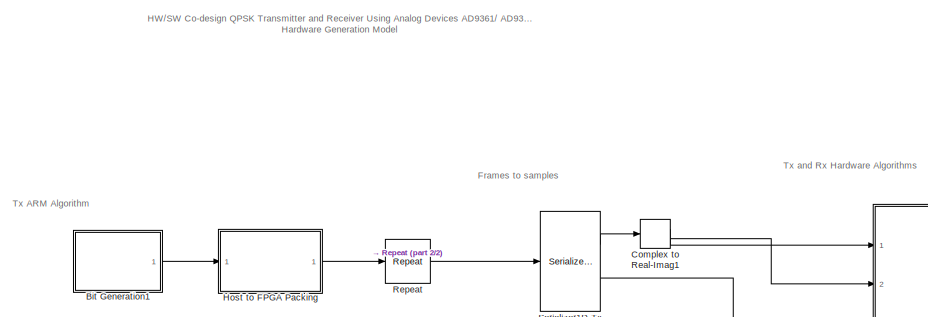
[diagram: root canvas - part 1/2, top left region]
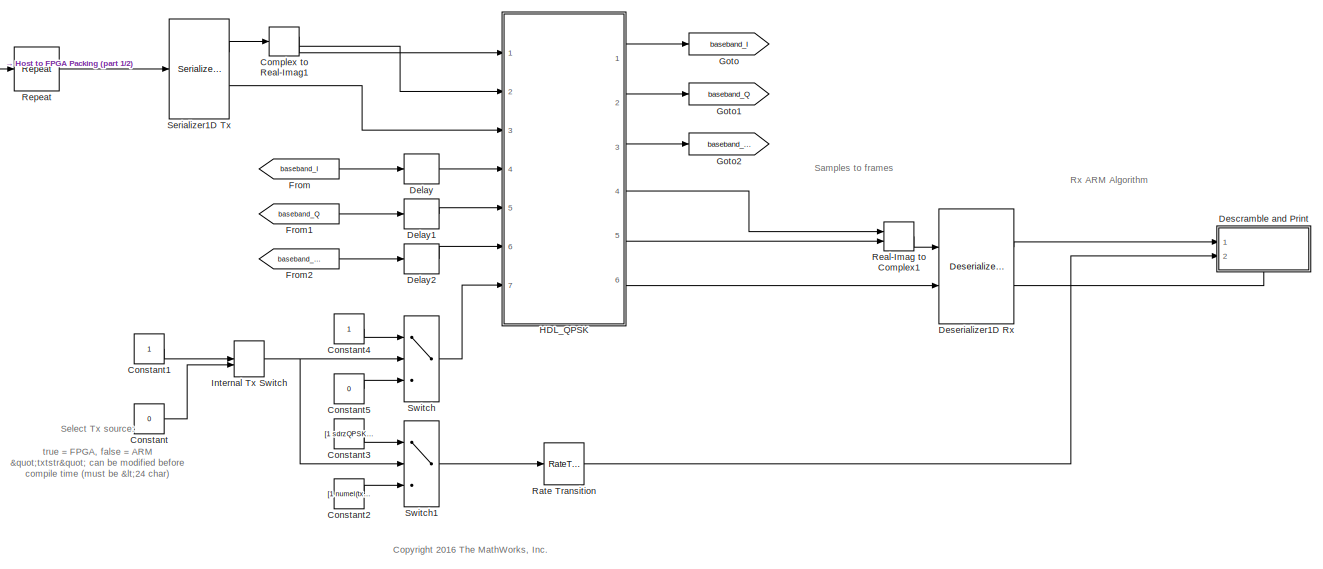
[diagram: root canvas - part 2/2, full width, middle band]
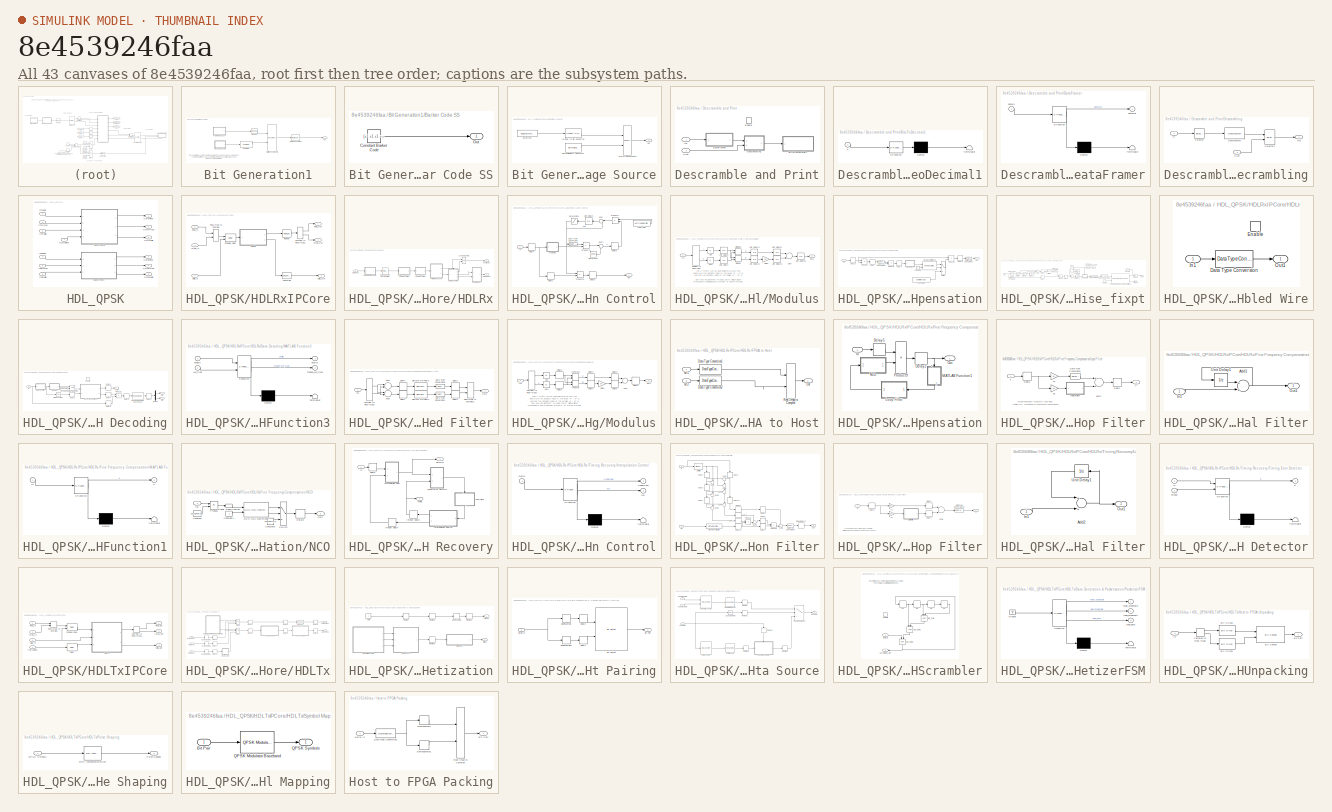
[diagram: thumbnail index - all 43 canvases of the model, root first then tree order]
MODEL slx_8e4539246faa
KIND model
CONFIG AbsTol = auto
CONFIG FixedStep = auto
CONFIG InitFcn = sdrzQPSKTxFPGA_params = zynqRadioQPSKTxFPGAAD9361AD9364SL_init;\nsdrzQPSKrxFPGA = zynqRadioQPSKRxFPGAAD9361AD9364SL_init;\n\n% Need preamble & data from CST's QPSK Tx HDL example\nqpsktxhdl=commqpsktxhdl_init();\n\nif (numel(txtstr) > 24)\n  error('txtstr message must be less than 24 characters');\nend; 
CONFIG MaxStep = auto
CONFIG MinStep = auto
CONFIG PreLoadFcn = % Ensure SDR libraries are added to path\ntempradiodev_ = sdrdev('ZC706 and FMCOMMS2/3/4');\ntempradiodev_.setupSession();\nclear tempradiodev_; % clean up\n\nsdrzQPSKTxFPGA_params = zynqRadioQPSKTxFPGAAD9361AD9364SL_init;\nsdrzQPSKrxFPGA = zynqRadioQPSKRxFPGAAD9361AD9364SL_init;\n\n% Need preamble & data from CST's QPSK Tx HDL example\nqpsktxhdl=commqpsktxhdl_init();\n\n% ARM Tx message\ntxtstr = '*Zynq HW/S...<+13ch>
CONFIG RelTol = 1e-3
CONFIG SampleTimeConstraint = Unconstrained
CONFIG Solver = FixedStepDiscrete
CONFIG SolverMode = SingleTasking
CONFIG SolverName = FixedStepDiscrete
CONFIG StartTime = 0.0
CONFIG StopTime = inf
BLOCK [SubSystem] Bit Generation1
  Ports = [0, 1]
  RequestExecContextInheritance = off
  Variant = off
BLOCK [SubSystem] Bit Generation1/Barker Code SS
  Ports = [0, 1]
  RequestExecContextInheritance = off
  Variant = off
BLOCK [Constant] Bit Generation1/Barker Code SS/Constant Barker Code
  OutDataTypeStr = double
  Value = [+1 +1 +1 +1 +1 -1 -1 +1 +1 -1 +1 -1 +1\n].' > 0  % Bipolar to Unipolar Conversion
  VectorParams1D = off
BLOCK [Outport] Bit Generation1/Barker Code SS/Out
  IconDisplay = Port number
BLOCK [FrameConversion] Bit Generation1/Frame Conversion
  InheritSamplingMode = off
  OutFrame = Sample-based
  Ports = [1, 1]
BLOCK [Concatenate] Bit Generation1/Matrix Concatenate
  Mode = Multidimensional array
  Ports = [2, 1]
BLOCK [SubSystem] Bit Generation1/Message Source
  Ports = [0, 1]
  RequestExecContextInheritance = off
  Variant = off
BLOCK [Reference] Bit Generation1/Message Source/Bernoulli Binary Generator  REF=commrandsrc2/Bernoulli Binary
Generator
  Ports = [0, 1]
  SourceBlock = commrandsrc2/Bernoulli Binary\nGenerator
  SourceType = Bernoulli Binary Generator
BLOCK [Reference] Bit Generation1/Message Source/Integer to Bit Converter  REF=commutil2/Integer to Bit
Converter
  Ports = [1, 1]
  SourceBlock = commutil2/Integer to Bit\nConverter
  SourceType = Integer to Bit Converter
BLOCK [Concatenate] Bit Generation1/Message Source/Matrix Concatenate
  Mode = Multidimensional array
  Ports = [2, 1]
BLOCK [Outport] Bit Generation1/Message Source/Out
  IconDisplay = Port number
BLOCK [Constant] Bit Generation1/Message Source/Scroll text
  Value = double(txtstr)
BLOCK [Outport] Bit Generation1/Out
  IconDisplay = Port number
BLOCK [Reference] Bit Generation1/Repeat  REF=dspsigops/Repeat
  Ports = [1, 1]
  SourceBlock = dspsigops/Repeat
  SourceType = Repeat
  UserDataPersistent = on
BLOCK [Reference] Bit Generation1/Scrambler  REF=commsequence2/Scrambler
  Ports = [1, 1]
  SourceBlock = commsequence2/Scrambler
  SourceType = Scrambler
BLOCK [ComplexToRealImag] Complex to Real-Imag1
  Ports = [1, 2]
BLOCK [Constant] Constant
  OutDataTypeStr = boolean
  SampleTime = -1
  Value = 0
BLOCK [Constant] Constant1
  OutDataTypeStr = boolean
  SampleTime = -1
BLOCK [Constant] Constant2
  SampleTime = -1
  Value = [1 numel(txtstr)*7]
BLOCK [Constant] Constant3
  SampleTime = -1
  Value = [1 sdrzQPSKTxFPGA_params.MsgLength]
BLOCK [Constant] Constant4
  OutDataTypeStr = boolean
  SampleTime = -1
BLOCK [Constant] Constant5
  OutDataTypeStr = boolean
  SampleTime = -1
  Value = 0
BLOCK [Delay] Delay
  DelayLength = 1
  InputPortMap = u0
  Ports = [1, 1]
BLOCK [Delay] Delay1
  DelayLength = 1
  InputPortMap = u0
  Ports = [1, 1]
BLOCK [Delay] Delay2
  DelayLength = 1
  InputPortMap = u0
  Ports = [1, 1]
BLOCK [SubSystem] Descramble and Print
  Ports = [2, 0, 1]
  RequestExecContextInheritance = off
  TreatAsAtomicUnit = on
  Variant = off
BLOCK [SubSystem] Descramble and Print/BitsToDecimal1
  ErrorFcn = Stateflow.Translate.translate
  PermitHierarchicalResolution = ExplicitOnly
  Ports = [1]
  RequestExecContextInheritance = off
  SFBlockType = MATLAB Function
  TreatAsAtomicUnit = on
  Variant = off
BLOCK [Demux] Descramble and Print/BitsToDecimal1/ Demux 
  Outputs = 1
  Ports = [1, 1]
BLOCK [S-Function] Descramble and Print/BitsToDecimal1/ SFunction 
  EnableBusSupport = on
  FunctionName = sf_sfun
  PortCounts = [1 1]
  Ports = [1, 1]
  SFunctionDeploymentMode = off
  Tag = Stateflow S-Function zynqRadioHWSWQPSKAD9361AD9364SL 2
BLOCK [Terminator] Descramble and Print/BitsToDecimal1/ Terminator 
BLOCK [Inport] Descramble and Print/BitsToDecimal1/u
  IconDisplay = Port number
BLOCK [SubSystem] Descramble and Print/DataFramer
  ErrorFcn = Stateflow.Translate.translate
  PermitHierarchicalResolution = ExplicitOnly
  Ports = [1, 1]
  RequestExecContextInheritance = off
  SFBlockType = MATLAB Function
  TreatAsAtomicUnit = on
  Variant = off
BLOCK [Demux] Descramble and Print/DataFramer/ Demux 
  Outputs = 1
  Ports = [1, 1]
BLOCK [S-Function] Descramble and Print/DataFramer/ SFunction 
  EnableBusSupport = on
  FunctionName = sf_sfun
  PortCounts = [1 2]
  Ports = [1, 2]
  SFunctionDeploymentMode = off
  Tag = Stateflow S-Function zynqRadioHWSWQPSKAD9361AD9364SL 9
BLOCK [Terminator] Descramble and Print/DataFramer/ Terminator 
BLOCK [Inport] Descramble and Print/DataFramer/dataIn
  IconDisplay = Port number
BLOCK [Outport] Descramble and Print/DataFramer/dataOut
  IconDisplay = Port number
BLOCK [SubSystem] Descramble and Print/Descrambling
  Ports = [2, 1]
  RequestExecContextInheritance = off
  Variant = off
BLOCK [Reference] Descramble and Print/Descrambling/Descrambler  REF=commsequence2/Descrambler
  Ports = [1, 1]
  SourceBlock = commsequence2/Descrambler
  SourceType = Descrambler
BLOCK [Inport] Descramble and Print/Descrambling/In
  IconDisplay = Port number
BLOCK [Outport] Descramble and Print/Descrambling/Out
  IconDisplay = Port number
BLOCK [Selector] Descramble and Print/Descrambling/Selector
  IndexOptions = Index vector (dialog)
  Indices = [sdrzQPSKrxFPGA.BarkerLength*log2(sdrzQPSKrxFPGA.M)+1:sdrzQPSKrxFPGA.FrameSize*log2(sdrzQPSKrxFPGA.M)]
  OutputSizes = 1
  Ports = [1, 1]
BLOCK [Selector] Descramble and Print/Descrambling/Selector1
  IndexOptions = Starting and ending indices (port)
  Indices = [1:msglen]
  OutputSizes = 1
  Ports = [2, 1]
BLOCK [Inport] Descramble and Print/Descrambling/Size
  IconDisplay = Port number
  Port = 2
BLOCK [EnablePort] Descramble and Print/Enable
  Ports = []
  PropagateVarSize = During execution
BLOCK [Inport] Descramble and Print/In1
  IconDisplay = Port number
BLOCK [Inport] Descramble and Print/Size
  IconDisplay = Port number
  Port = 2
BLOCK [Reference] Deserializer1D Rx  REF=hdlsllib/HDL Operations/Deserializer1D
  Ports = [2, 2]
  SourceBlock = hdlsllib/HDL Operations/Deserializer1D
  SourceType = Deserializer1D
BLOCK [From] From
  GotoTag = baseband_I
BLOCK [From] From1
  GotoTag = baseband_Q
BLOCK [From] From2
  GotoTag = baseband_vld
BLOCK [Goto] Goto
  GotoTag = baseband_I
BLOCK [Goto] Goto1
  GotoTag = baseband_Q
BLOCK [Goto] Goto2
  GotoTag = baseband_vld
BLOCK [SubSystem] HDL_QPSK
  Ports = [7, 6]
  RequestExecContextInheritance = off
  TreatAsAtomicUnit = on
  Variant = off
BLOCK [SubSystem] HDL_QPSK/HDLRxIPCore
  Ports = [3, 3]
  RequestExecContextInheritance = off
  TreatAsAtomicUnit = on
  Variant = off
BLOCK [ComplexToRealImag] HDL_QPSK/HDLRxIPCore/Complex to Real-Imag1
  Ports = [1, 2]
BLOCK [Delay] HDL_QPSK/HDLRxIPCore/Enabled Delay
  DelayLength = 1
  InputPortMap = u0,e6
  Ports = [2, 1]
  ShowEnablePort = on
BLOCK [SubSystem] HDL_QPSK/HDLRxIPCore/HDLRx
  Ports = [1, 2]
  RequestExecContextInheritance = off
  Variant = off
BLOCK [SubSystem] HDL_QPSK/HDLRxIPCore/HDLRx/Automatic Gain Control
  Ports = [1, 1]
  RequestExecContextInheritance = off
  Variant = off
BLOCK [DataTypeConversion] HDL_QPSK/HDLRxIPCore/HDLRx/Automatic Gain Control/Data Type Conversion
  OutDataTypeStr = fixdt(1,16,4)
  RndMeth = Floor
BLOCK [Delay] HDL_QPSK/HDLRxIPCore/HDLRx/Automatic Gain Control/Delay1
  DelayLength = 4
  InitialCondition = 0
  InputPortMap = u0
  Ports = [1, 1]
BLOCK [Delay] HDL_QPSK/HDLRxIPCore/HDLRx/Automatic Gain Control/Delay2
  DelayLength = 1
  InitialCondition = 0
  InputPortMap = u0
  Ports = [1, 1]
BLOCK [Delay] HDL_QPSK/HDLRxIPCore/HDLRx/Automatic Gain Control/Delay3
  DelayLength = 1
  InitialCondition = 0
  InputPortMap = u0
  Ports = [1, 1]
BLOCK [Delay] HDL_QPSK/HDLRxIPCore/HDLRx/Automatic Gain Control/Delay4
  DelayLength = 1
  InitialCondition = 0
  InputPortMap = u0
  Ports = [1, 1]
BLOCK [Inport] HDL_QPSK/HDLRxIPCore/HDLRx/Automatic Gain Control/In
  IconDisplay = Port number
BLOCK [Constant] HDL_QPSK/HDLRxIPCore/HDLRx/Automatic Gain Control/Loop gain
  OutDataTypeStr = fixdt(1,16,10)
  SampleTime = sdrzQPSKrxFPGA.Ts
  Value = AGCLoopGain
BLOCK [SubSystem] HDL_QPSK/HDLRxIPCore/HDLRx/Automatic Gain Control/Modulus
  Ports = [1, 1]
  RequestExecContextInheritance = off
  Variant = off
BLOCK [Abs] HDL_QPSK/HDLRxIPCore/HDLRx/Automatic Gain Control/Modulus/Abs
  SaturateOnIntegerOverflow = off
BLOCK [Abs] HDL_QPSK/HDLRxIPCore/HDLRx/Automatic Gain Control/Modulus/Abs1
  SaturateOnIntegerOverflow = off
BLOCK [Sum] HDL_QPSK/HDLRxIPCore/HDLRx/Automatic Gain Control/Modulus/Add7
  InputSameDT = off
  OutDataTypeStr = Inherit: Inherit via internal rule
  Ports = [2, 1]
  SaturateOnIntegerOverflow = off
BLOCK [ComplexToRealImag] HDL_QPSK/HDLRxIPCore/HDLRx/Automatic Gain Control/Modulus/Complex to Real-Imag
  Ports = [1, 2]
BLOCK [Gain] HDL_QPSK/HDLRxIPCore/HDLRx/Automatic Gain Control/Modulus/Gain4
  Gain = 0.4
  OutDataTypeStr = fixdt(1,16,15)
  ParamDataTypeStr = Inherit: Inherit via internal rule
  SaturateOnIntegerOverflow = off
BLOCK [Inport] HDL_QPSK/HDLRxIPCore/HDLRx/Automatic Gain Control/Modulus/In1
  IconDisplay = Port number
BLOCK [MinMax] HDL_QPSK/HDLRxIPCore/HDLRx/Automatic Gain Control/Modulus/MinMax
  InputSameDT = off
  Inputs = 2
  Ports = [2, 1]
  SaturateOnIntegerOverflow = off
BLOCK [MinMax] HDL_QPSK/HDLRxIPCore/HDLRx/Automatic Gain Control/Modulus/MinMax1
  Function = max
  InputSameDT = off
  Inputs = 2
  Ports = [2, 1]
  SaturateOnIntegerOverflow = off
BLOCK [Outport] HDL_QPSK/HDLRxIPCore/HDLRx/Automatic Gain Control/Modulus/Out1
  IconDisplay = Port number
BLOCK [UnitDelay] HDL_QPSK/HDLRxIPCore/HDLRx/Automatic Gain Control/Modulus/Unit Delay10
  InputProcessing = Elements as channels (sample based)
  SampleTime = -1
BLOCK [UnitDelay] HDL_QPSK/HDLRxIPCore/HDLRx/Automatic Gain Control/Modulus/Unit Delay11
  InputProcessing = Elements as channels (sample based)
  SampleTime = -1
BLOCK [UnitDelay] HDL_QPSK/HDLRxIPCore/HDLRx/Automatic Gain Control/Modulus/Unit Delay12
  InputProcessing = Elements as channels (sample based)
  SampleTime = -1
BLOCK [UnitDelay] HDL_QPSK/HDLRxIPCore/HDLRx/Automatic Gain Control/Modulus/Unit Delay13
  InputProcessing = Elements as channels (sample based)
  SampleTime = -1
BLOCK [UnitDelay] HDL_QPSK/HDLRxIPCore/HDLRx/Automatic Gain Control/Modulus/Unit Delay16
  InputProcessing = Elements as channels (sample based)
  SampleTime = -1
BLOCK [UnitDelay] HDL_QPSK/HDLRxIPCore/HDLRx/Automatic Gain Control/Modulus/Unit Delay6
  InputProcessing = Elements as channels (sample based)
  SampleTime = -1
BLOCK [UnitDelay] HDL_QPSK/HDLRxIPCore/HDLRx/Automatic Gain Control/Modulus/Unit Delay7
  InputProcessing = Elements as channels (sample based)
  SampleTime = -1
BLOCK [Outport] HDL_QPSK/HDLRxIPCore/HDLRx/Automatic Gain Control/Out
  IconDisplay = Port number
  PortDimensions = 1
BLOCK [Product] HDL_QPSK/HDLRxIPCore/HDLRx/Automatic Gain Control/Product1
  InputSameDT = off
  OutDataTypeStr = fixdt(1,16,10)
  Ports = [2, 1]
  SaturateOnIntegerOverflow = off
BLOCK [Product] HDL_QPSK/HDLRxIPCore/HDLRx/Automatic Gain Control/Product11
  InputSameDT = off
  OutDataTypeStr = fixdt(1,16,10)
  Ports = [2, 1]
  SaturateOnIntegerOverflow = off
BLOCK [Product] HDL_QPSK/HDLRxIPCore/HDLRx/Automatic Gain Control/Product9
  InputSameDT = off
  OutDataTypeStr = fixdt(1,16,14)
  Ports = [2, 1]
BLOCK [Constant] HDL_QPSK/HDLRxIPCore/HDLRx/Automatic Gain Control/Reference
  OutDataTypeStr = fixdt(1,16,10)
  SampleTime = sdrzQPSKrxFPGA.Ts
  Value = AGCRef
BLOCK [Saturate] HDL_QPSK/HDLRxIPCore/HDLRx/Automatic Gain Control/Saturation1
  InputPortMap = u0
  LowerLimit = 1e-5
  Ports = [1, 1]
  UpperLimit = AGCUpperLimit
BLOCK [Sum] HDL_QPSK/HDLRxIPCore/HDLRx/Automatic Gain Control/Sum
  IconShape = round
  InputSameDT = off
  Inputs = |++
  OutDataTypeStr = fixdt(1,23,10)
  Ports = [2, 1]
BLOCK [Sum] HDL_QPSK/HDLRxIPCore/HDLRx/Automatic Gain Control/Sum1
  IconShape = round
  InputSameDT = off
  Inputs = |-+
  Ports = [2, 1]
  SaturateOnIntegerOverflow = off
BLOCK [UnitDelay] HDL_QPSK/HDLRxIPCore/HDLRx/Automatic Gain Control/Unit Delay2
  InputProcessing = Elements as channels (sample based)
  SampleTime = -1
BLOCK [SubSystem] HDL_QPSK/HDLRxIPCore/HDLRx/Coarse Frequency Compensation
  Ports = [1, 1]
  RequestExecContextInheritance = off
  Variant = off
BLOCK [Constant] HDL_QPSK/HDLRxIPCore/HDLRx/Coarse Frequency Compensation/Constant1
  OutDataTypeStr = boolean
  SampleTime = sdrzQPSKrxFPGA.Ts*sdrzQPSKrxFPGA.Upsampling/sdrzQPSKrxFPGA.Downsampling
BLOCK [Constant] HDL_QPSK/HDLRxIPCore/HDLRx/Coarse Frequency Compensation/Constant2
  OutDataTypeStr = fixdt(1,10,8)
  SampleTime = sdrzQPSKrxFPGA.Ts*sdrzQPSKrxFPGA.Upsampling/sdrzQPSKrxFPGA.Downsampling
  Value = complex(0,0)
BLOCK [DataTypeConversion] HDL_QPSK/HDLRxIPCore/HDLRx/Coarse Frequency Compensation/Data Type Conversion1
  OutDataTypeStr = fixdt(1,16,14)
  RndMeth = Floor
  SaturateOnIntegerOverflow = off
BLOCK [DataTypeConversion] HDL_QPSK/HDLRxIPCore/HDLRx/Coarse Frequency Compensation/Data Type Conversion5
  OutDataTypeStr = fixdt(1,16,13)
  RndMeth = Floor
BLOCK [Delay] HDL_QPSK/HDLRxIPCore/HDLRx/Coarse Frequency Compensation/Delay
  DelayLength = 4
  InitialCondition = 0
  InputPortMap = u0
  Ports = [1, 1]
BLOCK [Delay] HDL_QPSK/HDLRxIPCore/HDLRx/Coarse Frequency Compensation/Delay1
  DelayLength = 4
  InitialCondition = 0
  InputPortMap = u0
  Ports = [1, 1]
BLOCK [Delay] HDL_QPSK/HDLRxIPCore/HDLRx/Coarse Frequency Compensation/Delay2
  DelayLength = 1
  InitialCondition = 0
  InputPortMap = u0
  Ports = [1, 1]
BLOCK [Delay] HDL_QPSK/HDLRxIPCore/HDLRx/Coarse Frequency Compensation/Delay5
  DelayLength = 4
  InitialCondition = 0
  InputPortMap = u0
  Ports = [1, 1]
BLOCK [Inport] HDL_QPSK/HDLRxIPCore/HDLRx/Coarse Frequency Compensation/In
  IconDisplay = Port number
  PortDimensions = 1
BLOCK [Reference] HDL_QPSK/HDLRxIPCore/HDLRx/Coarse Frequency Compensation/NCO HDL Optimized1  REF=dspsigops/NCO
HDL Optimized
  Ports = [2, 2]
  SourceBlock = dspsigops/NCO\nHDL Optimized
  SourceType = NCO HDL Optimized
BLOCK [Outport] HDL_QPSK/HDLRxIPCore/HDLRx/Coarse Frequency Compensation/Out
  IconDisplay = Port number
BLOCK [Product] HDL_QPSK/HDLRxIPCore/HDLRx/Coarse Frequency Compensation/Product1
  InputSameDT = off
  OutDataTypeStr = Inherit: Inherit via internal rule
  Ports = [2, 1]
BLOCK [Product] HDL_QPSK/HDLRxIPCore/HDLRx/Coarse Frequency Compensation/Product3
  InputSameDT = off
  OutDataTypeStr = Inherit: Inherit via internal rule
  Ports = [2, 1]
BLOCK [Product] HDL_QPSK/HDLRxIPCore/HDLRx/Coarse Frequency Compensation/Product9
  InputSameDT = off
  OutDataTypeStr = Inherit: Inherit via internal rule
  Ports = [2, 1]
BLOCK [Switch] HDL_QPSK/HDLRxIPCore/HDLRx/Coarse Frequency Compensation/Switch
  Criteria = u2 ~= 0
  InputSameDT = off
  SaturateOnIntegerOverflow = off
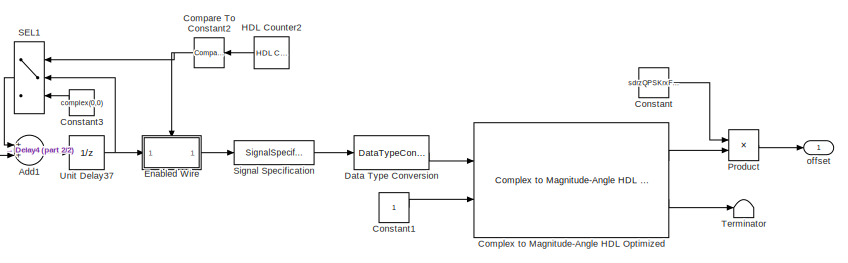
[diagram: HDL_QPSK/HDLRxIPCore/HDLRx/Coarse Frequency Compensation/luise_fixpt - part 1/2, right side, full height]
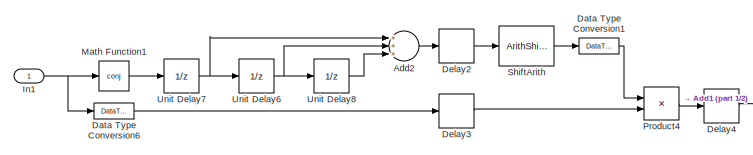
[diagram: HDL_QPSK/HDLRxIPCore/HDLRx/Coarse Frequency Compensation/luise_fixpt - part 2/2, middle left region]
BLOCK [SubSystem] HDL_QPSK/HDLRxIPCore/HDLRx/Coarse Frequency Compensation/luise_fixpt
  Ports = [1, 1]
  RequestExecContextInheritance = off
  Variant = off
BLOCK [Sum] HDL_QPSK/HDLRxIPCore/HDLRx/Coarse Frequency Compensation/luise_fixpt/Add1
  InputSameDT = off
  OutDataTypeStr = fixdt(1,33,20)
  Ports = [2, 1]
  SaturateOnIntegerOverflow = off
BLOCK [Sum] HDL_QPSK/HDLRxIPCore/HDLRx/Coarse Frequency Compensation/luise_fixpt/Add2
  InputSameDT = off
  Inputs = +++
  OutDataTypeStr = fixdt(1,33,20)
  Ports = [3, 1]
  SaturateOnIntegerOverflow = off
BLOCK [Reference] HDL_QPSK/HDLRxIPCore/HDLRx/Coarse Frequency Compensation/luise_fixpt/Compare To Constant2  REF=simulink/Logic and Bit
Operations/Compare
To Constant
  Ports = [1, 1]
  SourceBlock = simulink/Logic and Bit\nOperations/Compare\nTo Constant
  SourceType = Compare To Constant
BLOCK [Reference] HDL_QPSK/HDLRxIPCore/HDLRx/Coarse Frequency Compensation/luise_fixpt/Complex to Magnitude-Angle HDL Optimized  REF=dspmathops/Complex to Magnitude-Angle
HDL Optimized
  Ports = [2, 2]
  SourceBlock = dspmathops/Complex to Magnitude-Angle\nHDL Optimized
  SourceType = Complex to Magnitude-Angle HDL Optimized
BLOCK [Constant] HDL_QPSK/HDLRxIPCore/HDLRx/Coarse Frequency Compensation/luise_fixpt/Constant
  OutDataTypeStr = int16
  SampleTime = sdrzQPSKrxFPGA.Ts*sdrzQPSKrxFPGA.Upsampling/sdrzQPSKrxFPGA.Downsampling
  Value = sdrzQPSKrxFPGA.CFC_Const
BLOCK [Constant] HDL_QPSK/HDLRxIPCore/HDLRx/Coarse Frequency Compensation/luise_fixpt/Constant1
  OutDataTypeStr = boolean
  SampleTime = sdrzQPSKrxFPGA.Ts*sdrzQPSKrxFPGA.Upsampling/sdrzQPSKrxFPGA.Downsampling
BLOCK [Constant] HDL_QPSK/HDLRxIPCore/HDLRx/Coarse Frequency Compensation/luise_fixpt/Constant3
  OutDataTypeStr = fixdt(1,16,14)
  SampleTime = sdrzQPSKrxFPGA.Ts*sdrzQPSKrxFPGA.Upsampling/sdrzQPSKrxFPGA.Downsampling
  Value = complex(0,0)
BLOCK [DataTypeConversion] HDL_QPSK/HDLRxIPCore/HDLRx/Coarse Frequency Compensation/luise_fixpt/Data Type Conversion
  OutDataTypeStr = fixdt(1,sdrzQPSKrxFPGA.rad_WL,sdrzQPSKrxFPGA.rad_FL)
  RndMeth = Floor
  SaturateOnIntegerOverflow = off
BLOCK [DataTypeConversion] HDL_QPSK/HDLRxIPCore/HDLRx/Coarse Frequency Compensation/luise_fixpt/Data Type Conversion1
  OutDataTypeStr = fixdt(1,11,10)
  RndMeth = Floor
  SaturateOnIntegerOverflow = off
BLOCK [DataTypeConversion] HDL_QPSK/HDLRxIPCore/HDLRx/Coarse Frequency Compensation/luise_fixpt/Data Type Conversion6
  OutDataTypeStr = fixdt(1,14,9)
  RndMeth = Floor
BLOCK [Delay] HDL_QPSK/HDLRxIPCore/HDLRx/Coarse Frequency Compensation/luise_fixpt/Delay2
  DelayLength = 1
  InitialCondition = 0
  InputPortMap = u0
  Ports = [1, 1]
BLOCK [Delay] HDL_QPSK/HDLRxIPCore/HDLRx/Coarse Frequency Compensation/luise_fixpt/Delay3
  DelayLength = 1
  InitialCondition = 0
  InputPortMap = u0
  Ports = [1, 1]
BLOCK [Delay] HDL_QPSK/HDLRxIPCore/HDLRx/Coarse Frequency Compensation/luise_fixpt/Delay4
  DelayLength = 4
  InitialCondition = 0
  InputPortMap = u0
  Ports = [1, 1]
BLOCK [SubSystem] HDL_QPSK/HDLRxIPCore/HDLRx/Coarse Frequency Compensation/luise_fixpt/Enabled Wire
  Ports = [1, 1, 1]
  RequestExecContextInheritance = off
  TreatAsAtomicUnit = on
  Variant = off
BLOCK [DataTypeConversion] HDL_QPSK/HDLRxIPCore/HDLRx/Coarse Frequency Compensation/luise_fixpt/Enabled Wire/Data Type Conversion
  OutDataTypeStr = fixdt(1,sdrzQPSKrxFPGA.rad_WL,sdrzQPSKrxFPGA.rad_FL)
  RndMeth = Floor
  SaturateOnIntegerOverflow = off
BLOCK [EnablePort] HDL_QPSK/HDLRxIPCore/HDLRx/Coarse Frequency Compensation/luise_fixpt/Enabled Wire/Enable
  Ports = []
BLOCK [Inport] HDL_QPSK/HDLRxIPCore/HDLRx/Coarse Frequency Compensation/luise_fixpt/Enabled Wire/In1
  IconDisplay = Port number
BLOCK [Outport] HDL_QPSK/HDLRxIPCore/HDLRx/Coarse Frequency Compensation/luise_fixpt/Enabled Wire/Out1
  IconDisplay = Port number
  InitialOutput = 0
BLOCK [Reference] HDL_QPSK/HDLRxIPCore/HDLRx/Coarse Frequency Compensation/luise_fixpt/HDL Counter2  REF=hdlsllib/HDL Operations/HDL Counter
  Ports = [0, 1]
  SourceBlock = hdlsllib/HDL Operations/HDL Counter
  SourceType = HDL Counter
BLOCK [Inport] HDL_QPSK/HDLRxIPCore/HDLRx/Coarse Frequency Compensation/luise_fixpt/In1
  IconDisplay = Port number
BLOCK [Math] HDL_QPSK/HDLRxIPCore/HDLRx/Coarse Frequency Compensation/luise_fixpt/Math Function1
  Operator = conj
  OutputSignalType = complex
  Ports = [1, 1]
BLOCK [Product] HDL_QPSK/HDLRxIPCore/HDLRx/Coarse Frequency Compensation/luise_fixpt/Product
  InputSameDT = off
  OutDataTypeStr = int16
  Ports = [2, 1]
  RndMeth = Floor
  SaturateOnIntegerOverflow = off
BLOCK [Product] HDL_QPSK/HDLRxIPCore/HDLRx/Coarse Frequency Compensation/luise_fixpt/Product4
  InputSameDT = off
  OutDataTypeStr = Inherit: Inherit via internal rule
  Ports = [2, 1]
BLOCK [MultiPortSwitch] HDL_QPSK/HDLRxIPCore/HDLRx/Coarse Frequency Compensation/luise_fixpt/SEL1
  DataPortOrder = Zero-based contiguous
  DiagnosticForDefault = None
  InputSameDT = off
  Inputs = 2
  OutDataTypeStr = fixdt(1,33,20)
  Ports = [3, 1]
  SaturateOnIntegerOverflow = off
BLOCK [ArithShift] HDL_QPSK/HDLRxIPCore/HDLRx/Coarse Frequency Compensation/luise_fixpt/ShiftArith
  BitShiftDirection = Right
  BitShiftNumber = 9
  InputPortMap = u0
  Ports = [1, 1]
BLOCK [SignalSpecification] HDL_QPSK/HDLRxIPCore/HDLRx/Coarse Frequency Compensation/luise_fixpt/Signal Specification
  Dimensions = 1
BLOCK [Terminator] HDL_QPSK/HDLRxIPCore/HDLRx/Coarse Frequency Compensation/luise_fixpt/Terminator
BLOCK [UnitDelay] HDL_QPSK/HDLRxIPCore/HDLRx/Coarse Frequency Compensation/luise_fixpt/Unit Delay37
  InitialCondition = 0+0j
  InputProcessing = Elements as channels (sample based)
  SampleTime = -1
BLOCK [UnitDelay] HDL_QPSK/HDLRxIPCore/HDLRx/Coarse Frequency Compensation/luise_fixpt/Unit Delay6
  InputProcessing = Elements as channels (sample based)
  SampleTime = -1
BLOCK [UnitDelay] HDL_QPSK/HDLRxIPCore/HDLRx/Coarse Frequency Compensation/luise_fixpt/Unit Delay7
  InputProcessing = Elements as channels (sample based)
  SampleTime = -1
BLOCK [UnitDelay] HDL_QPSK/HDLRxIPCore/HDLRx/Coarse Frequency Compensation/luise_fixpt/Unit Delay8
  InputProcessing = Elements as channels (sample based)
  SampleTime = -1
BLOCK [Outport] HDL_QPSK/HDLRxIPCore/HDLRx/Coarse Frequency Compensation/luise_fixpt/offset
  IconDisplay = Port number
  PortDimensions = 1
BLOCK [SubSystem] HDL_QPSK/HDLRxIPCore/HDLRx/Data Decoding
  Ports = [1, 3, 1]
  RequestExecContextInheritance = off
  TreatAsAtomicUnit = on
  Variant = off
BLOCK [Outport] HDL_QPSK/HDLRxIPCore/HDLRx/Data Decoding/Bit1
  IconDisplay = Port number
  InitialOutput = 0
  Port = 2
BLOCK [Outport] HDL_QPSK/HDLRxIPCore/HDLRx/Data Decoding/Bit2
  IconDisplay = Port number
  InitialOutput = 0
  Port = 3
BLOCK [Constant] HDL_QPSK/HDLRxIPCore/HDLRx/Data Decoding/Constant
  OutDataTypeStr = Inherit: Inherit via back propagation
  SampleTime = sdrzQPSKrxFPGA.Ts*sdrzQPSKrxFPGA.Upsampling/sdrzQPSKrxFPGA.Downsampling
  Value = Threshold
BLOCK [Delay] HDL_QPSK/HDLRxIPCore/HDLRx/Data Decoding/Delay1
  DelayLength = 20
  InitialCondition = 0
  InputPortMap = u0
  Ports = [1, 1]
BLOCK [Delay] HDL_QPSK/HDLRxIPCore/HDLRx/Data Decoding/Delay2
  DelayLength = 4
  InitialCondition = 0
  InputPortMap = u0
  Ports = [1, 1]
BLOCK [Delay] HDL_QPSK/HDLRxIPCore/HDLRx/Data Decoding/Delay3
  DelayLength = 3
  InitialCondition = 0
  InputPortMap = u0
  Ports = [1, 1]
BLOCK [Delay] HDL_QPSK/HDLRxIPCore/HDLRx/Data Decoding/Delay4
  DelayLength = 1
  InitialCondition = 0
  InputPortMap = u0
  Ports = [1, 1]
BLOCK [Delay] HDL_QPSK/HDLRxIPCore/HDLRx/Data Decoding/Delay5
  DelayLength = 1
  InitialCondition = 0
  InputPortMap = u0
  Ports = [1, 1]
BLOCK [Delay] HDL_QPSK/HDLRxIPCore/HDLRx/Data Decoding/Delay6
  DelayLength = 1
  InitialCondition = 0
  InputPortMap = u0
  Ports = [1, 1]
BLOCK [Demux] HDL_QPSK/HDLRxIPCore/HDLRx/Data Decoding/Demux
  DisplayOption = bar
  Outputs = 2
  Ports = [1, 2]
BLOCK [EnablePort] HDL_QPSK/HDLRxIPCore/HDLRx/Data Decoding/Enable
  Ports = []
BLOCK [Inport] HDL_QPSK/HDLRxIPCore/HDLRx/Data Decoding/In
  IconDisplay = Port number
BLOCK [SubSystem] HDL_QPSK/HDLRxIPCore/HDLRx/Data Decoding/MATLAB Function3
  ErrorFcn = Stateflow.Translate.translate
  PermitHierarchicalResolution = ExplicitOnly
  Ports = [2, 2]
  RequestExecContextInheritance = off
  SFBlockType = MATLAB Function
  TreatAsAtomicUnit = on
  Variant = off
BLOCK [Demux] HDL_QPSK/HDLRxIPCore/HDLRx/Data Decoding/MATLAB Function3/ Demux 
  Outputs = 1
  Ports = [1, 1]
BLOCK [S-Function] HDL_QPSK/HDLRxIPCore/HDLRx/Data Decoding/MATLAB Function3/ SFunction 
  EnableBusSupport = on
  FunctionName = sf_sfun
  PortCounts = [2 3]
  Ports = [2, 3]
  SFunctionDeploymentMode = off
  Tag = Stateflow S-Function zynqRadioHWSWQPSKAD9361AD9364SL 3
BLOCK [Terminator] HDL_QPSK/HDLRxIPCore/HDLRx/Data Decoding/MATLAB Function3/ Terminator 
BLOCK [Outport] HDL_QPSK/HDLRxIPCore/HDLRx/Data Decoding/MATLAB Function3/Freeze_MF_Conj
  IconDisplay = Port number
  Port = 2
BLOCK [Inport] HDL_QPSK/HDLRxIPCore/HDLRx/Data Decoding/MATLAB Function3/MF_Conj
  IconDisplay = Port number
  Port = 2
BLOCK [Outport] HDL_QPSK/HDLRxIPCore/HDLRx/Data Decoding/MATLAB Function3/dvalid
  IconDisplay = Port number
BLOCK [Inport] HDL_QPSK/HDLRxIPCore/HDLRx/Data Decoding/MATLAB Function3/enable
  IconDisplay = Port number
BLOCK [SubSystem] HDL_QPSK/HDLRxIPCore/HDLRx/Data Decoding/Matched Filter
  Ports = [1, 1]
  RequestExecContextInheritance = off
  Variant = off
BLOCK [Sum] HDL_QPSK/HDLRxIPCore/HDLRx/Data Decoding/Matched Filter/Add2
  InputSameDT = off
  OutDataTypeStr = Inherit: Inherit via internal rule
  Ports = [2, 1]
  SaturateOnIntegerOverflow = off
BLOCK [Sum] HDL_QPSK/HDLRxIPCore/HDLRx/Data Decoding/Matched Filter/Add3
  InputSameDT = off
  Inputs = +-
  OutDataTypeStr = Inherit: Inherit via internal rule
  Ports = [2, 1]
  SaturateOnIntegerOverflow = off
BLOCK [ComplexToRealImag] HDL_QPSK/HDLRxIPCore/HDLRx/Data Decoding/Matched Filter/Complex to Real-Imag2
  Ports = [1, 2]
BLOCK [DataTypeConversion] HDL_QPSK/HDLRxIPCore/HDLRx/Data Decoding/Matched Filter/Data Type Conversion1
  OutDataTypeStr = fixdt(1,16,10)
  RndMeth = Floor
  SaturateOnIntegerOverflow = off
BLOCK [DataTypeConversion] HDL_QPSK/HDLRxIPCore/HDLRx/Data Decoding/Matched Filter/Data Type Conversion6
  OutDataTypeStr = fixdt(1,16,10)
  RndMeth = Floor
  SaturateOnIntegerOverflow = off
BLOCK [Delay] HDL_QPSK/HDLRxIPCore/HDLRx/Data Decoding/Matched Filter/Delay1
  DelayLength = 1
  InitialCondition = 0
  InputPortMap = u0
  Ports = [1, 1]
BLOCK [Delay] HDL_QPSK/HDLRxIPCore/HDLRx/Data Decoding/Matched Filter/Delay2
  DelayLength = 1
  InitialCondition = 0
  InputPortMap = u0
  Ports = [1, 1]
BLOCK [Delay] HDL_QPSK/HDLRxIPCore/HDLRx/Data Decoding/Matched Filter/Delay3
  DelayLength = 1
  InitialCondition = 0
  InputPortMap = u0
  Ports = [1, 1]
BLOCK [Delay] HDL_QPSK/HDLRxIPCore/HDLRx/Data Decoding/Matched Filter/Delay4
  DelayLength = 1
  InitialCondition = 0
  InputPortMap = u0
  Ports = [1, 1]
BLOCK [DiscreteFir] HDL_QPSK/HDLRxIPCore/HDLRx/Data Decoding/Matched Filter/Discrete FIR Filter3
  Coefficients = [-1 1 -1 1 -1 -1 1 1 -1 -1 -1 -1 -1]
  FilterStructure = Direct form transposed
  InputPortMap = u0
  OutputPortMap = o0
  Ports = [1, 1]
BLOCK [DiscreteFir] HDL_QPSK/HDLRxIPCore/HDLRx/Data Decoding/Matched Filter/Discrete FIR Filter4
  Coefficients = -1*[-1 1 -1 1 -1 -1 1 1 -1 -1 -1 -1 -1]
  FilterStructure = Direct form transposed
  InputPortMap = u0
  OutputPortMap = o0
  Ports = [1, 1]
BLOCK [Inport] HDL_QPSK/HDLRxIPCore/HDLRx/Data Decoding/Matched Filter/In1
  IconDisplay = Port number
BLOCK [Outport] HDL_QPSK/HDLRxIPCore/HDLRx/Data Decoding/Matched Filter/Out1
  IconDisplay = Port number
BLOCK [RealImagToComplex] HDL_QPSK/HDLRxIPCore/HDLRx/Data Decoding/Matched Filter/Real-Imag to Complex2
  Ports = [2, 1]
BLOCK [Math] HDL_QPSK/HDLRxIPCore/HDLRx/Data Decoding/Math Function1
  Operator = conj
  OutputSignalType = complex
  Ports = [1, 1]
BLOCK [SubSystem] HDL_QPSK/HDLRxIPCore/HDLRx/Data Decoding/Modulus
  Ports = [1, 1]
  RequestExecContextInheritance = off
  Variant = off
BLOCK [Abs] HDL_QPSK/HDLRxIPCore/HDLRx/Data Decoding/Modulus/Abs
  SaturateOnIntegerOverflow = off
BLOCK [Abs] HDL_QPSK/HDLRxIPCore/HDLRx/Data Decoding/Modulus/Abs1
  SaturateOnIntegerOverflow = off
BLOCK [Sum] HDL_QPSK/HDLRxIPCore/HDLRx/Data Decoding/Modulus/Add7
  InputSameDT = off
  OutDataTypeStr = Inherit: Inherit via internal rule
  Ports = [2, 1]
  SaturateOnIntegerOverflow = off
BLOCK [ComplexToRealImag] HDL_QPSK/HDLRxIPCore/HDLRx/Data Decoding/Modulus/Complex to Real-Imag2
  Ports = [1, 2]
BLOCK [Delay] HDL_QPSK/HDLRxIPCore/HDLRx/Data Decoding/Modulus/Delay1
  DelayLength = 1
  InitialCondition = 0
  InputPortMap = u0
  Ports = [1, 1]
BLOCK [Delay] HDL_QPSK/HDLRxIPCore/HDLRx/Data Decoding/Modulus/Delay2
  DelayLength = 1
  InitialCondition = 0
  InputPortMap = u0
  Ports = [1, 1]
BLOCK [Delay] HDL_QPSK/HDLRxIPCore/HDLRx/Data Decoding/Modulus/Delay3
  DelayLength = 1
  InitialCondition = 0
  InputPortMap = u0
  Ports = [1, 1]
BLOCK [Delay] HDL_QPSK/HDLRxIPCore/HDLRx/Data Decoding/Modulus/Delay4
  DelayLength = 1
  InitialCondition = 0
  InputPortMap = u0
  Ports = [1, 1]
BLOCK [Delay] HDL_QPSK/HDLRxIPCore/HDLRx/Data Decoding/Modulus/Delay5
  DelayLength = 1
  InitialCondition = 0
  InputPortMap = u0
  Ports = [1, 1]
BLOCK [Delay] HDL_QPSK/HDLRxIPCore/HDLRx/Data Decoding/Modulus/Delay6
  DelayLength = 1
  InitialCondition = 0
  InputPortMap = u0
  Ports = [1, 1]
BLOCK [Delay] HDL_QPSK/HDLRxIPCore/HDLRx/Data Decoding/Modulus/Delay7
  DelayLength = 1
  InitialCondition = 0
  InputPortMap = u0
  Ports = [1, 1]
BLOCK [Gain] HDL_QPSK/HDLRxIPCore/HDLRx/Data Decoding/Modulus/Gain4
  Gain = 0.4
  OutDataTypeStr = fixdt(1,16,15)
  ParamDataTypeStr = Inherit: Inherit via internal rule
  SaturateOnIntegerOverflow = off
BLOCK [Inport] HDL_QPSK/HDLRxIPCore/HDLRx/Data Decoding/Modulus/In1
  IconDisplay = Port number
BLOCK [MinMax] HDL_QPSK/HDLRxIPCore/HDLRx/Data Decoding/Modulus/MinMax
  InputSameDT = off
  Inputs = 2
  Ports = [2, 1]
  SaturateOnIntegerOverflow = off
BLOCK [MinMax] HDL_QPSK/HDLRxIPCore/HDLRx/Data Decoding/Modulus/MinMax1
  Function = max
  InputSameDT = off
  Inputs = 2
  Ports = [2, 1]
  SaturateOnIntegerOverflow = off
BLOCK [Outport] HDL_QPSK/HDLRxIPCore/HDLRx/Data Decoding/Modulus/Out1
  IconDisplay = Port number
BLOCK [Product] HDL_QPSK/HDLRxIPCore/HDLRx/Data Decoding/Product2
  InputSameDT = off
  OutDataTypeStr = Inherit: Inherit via internal rule
  Ports = [2, 1]
BLOCK [Reference] HDL_QPSK/HDLRxIPCore/HDLRx/Data Decoding/QPSK Demodulator Baseband1  REF=commdigbbndpm3/QPSK
Demodulator
Baseband
  Ports = [1, 1]
  SourceBlock = commdigbbndpm3/QPSK\nDemodulator\nBaseband
  SourceType = QPSK Demodulator Baseband
BLOCK [RelationalOperator] HDL_QPSK/HDLRxIPCore/HDLRx/Data Decoding/Relational Operator
  OutDataTypeStr = boolean
  Ports = [2, 1]
BLOCK [Outport] HDL_QPSK/HDLRxIPCore/HDLRx/Data Decoding/dValid
  IconDisplay = Port number
  InitialOutput = 0
BLOCK [SubSystem] HDL_QPSK/HDLRxIPCore/HDLRx/FPGA to Host
  Ports = [2, 1]
  RequestExecContextInheritance = off
  Variant = off
BLOCK [DataTypeConversion] HDL_QPSK/HDLRxIPCore/HDLRx/FPGA to Host/Data Type Conversion1
  OutDataTypeStr = int16
  RndMeth = Floor
  SaturateOnIntegerOverflow = off
BLOCK [DataTypeConversion] HDL_QPSK/HDLRxIPCore/HDLRx/FPGA to Host/Data Type Conversion2
  OutDataTypeStr = int16
  RndMeth = Floor
  SaturateOnIntegerOverflow = off
BLOCK [Outport] HDL_QPSK/HDLRxIPCore/HDLRx/FPGA to Host/Out
  IconDisplay = Port number
BLOCK [RealImagToComplex] HDL_QPSK/HDLRxIPCore/HDLRx/FPGA to Host/Real-Imag to Complex
  Ports = [2, 1]
BLOCK [Inport] HDL_QPSK/HDLRxIPCore/HDLRx/FPGA to Host/bit1
  IconDisplay = Port number
BLOCK [Inport] HDL_QPSK/HDLRxIPCore/HDLRx/FPGA to Host/bit2
  IconDisplay = Port number
  Port = 2
BLOCK [SubSystem] HDL_QPSK/HDLRxIPCore/HDLRx/Fine Frequency Compensation
  Ports = [1, 1]
  RequestExecContextInheritance = off
  Variant = off
BLOCK [Delay] HDL_QPSK/HDLRxIPCore/HDLRx/Fine Frequency Compensation/Delay2
  DelayLength = 1
  InitialCondition = 0
  InputPortMap = u0
  Ports = [1, 1]
BLOCK [Delay] HDL_QPSK/HDLRxIPCore/HDLRx/Fine Frequency Compensation/Delay5
  DelayLength = 9
  InitialCondition = 0
  InputPortMap = u0
  Ports = [1, 1]
BLOCK [Inport] HDL_QPSK/HDLRxIPCore/HDLRx/Fine Frequency Compensation/In
  IconDisplay = Port number
  PortDimensions = 1
BLOCK [SubSystem] HDL_QPSK/HDLRxIPCore/HDLRx/Fine Frequency Compensation/Loop Filter
  Ports = [1, 1]
  RequestExecContextInheritance = off
  Variant = off
BLOCK [DataTypeConversion] HDL_QPSK/HDLRxIPCore/HDLRx/Fine Frequency Compensation/Loop Filter/Data Type Conversion3
  OutDataTypeStr = fixdt(1,32,29)
  RndMeth = Floor
  SaturateOnIntegerOverflow = off
BLOCK [Delay] HDL_QPSK/HDLRxIPCore/HDLRx/Fine Frequency Compensation/Loop Filter/Delay1
  DelayLength = 1
  InitialCondition = 0
  InputPortMap = u0
  Ports = [1, 1]
BLOCK [Delay] HDL_QPSK/HDLRxIPCore/HDLRx/Fine Frequency Compensation/Loop Filter/Delay2
  DelayLength = 1
  InitialCondition = 0
  InputPortMap = u0
  Ports = [1, 1]
BLOCK [SubSystem] HDL_QPSK/HDLRxIPCore/HDLRx/Fine Frequency Compensation/Loop Filter/Digital Filter
  Ports = [1, 1]
  RequestExecContextInheritance = off
  Variant = off
BLOCK [Sum] HDL_QPSK/HDLRxIPCore/HDLRx/Fine Frequency Compensation/Loop Filter/Digital Filter/Add1
  InputSameDT = off
  OutDataTypeStr = fixdt(1,32,29)
  Ports = [2, 1]
  SaturateOnIntegerOverflow = off
BLOCK [Inport] HDL_QPSK/HDLRxIPCore/HDLRx/Fine Frequency Compensation/Loop Filter/Digital Filter/In1
  IconDisplay = Port number
BLOCK [Outport] HDL_QPSK/HDLRxIPCore/HDLRx/Fine Frequency Compensation/Loop Filter/Digital Filter/Out1
  IconDisplay = Port number
BLOCK [UnitDelay] HDL_QPSK/HDLRxIPCore/HDLRx/Fine Frequency Compensation/Loop Filter/Digital Filter/Unit Delay1
  InputProcessing = Elements as channels (sample based)
  SampleTime = -1
BLOCK [Gain] HDL_QPSK/HDLRxIPCore/HDLRx/Fine Frequency Compensation/Loop Filter/K1
  Gain = K1
  OutDataTypeStr = Inherit: Inherit via internal rule
  ParamDataTypeStr = Inherit: Inherit via internal rule
  SaturateOnIntegerOverflow = off
BLOCK [Gain] HDL_QPSK/HDLRxIPCore/HDLRx/Fine Frequency Compensation/Loop Filter/K2
  Gain = K2
  OutDataTypeStr = Inherit: Inherit via internal rule
  ParamDataTypeStr = Inherit: Inherit via internal rule
  SaturateOnIntegerOverflow = off
BLOCK [Sum] HDL_QPSK/HDLRxIPCore/HDLRx/Fine Frequency Compensation/Loop Filter/Sum2
  OutDataTypeStr = fixdt(1,22,19)
  Ports = [2, 1]
BLOCK [Inport] HDL_QPSK/HDLRxIPCore/HDLRx/Fine Frequency Compensation/Loop Filter/e
  IconDisplay = Port number
BLOCK [Outport] HDL_QPSK/HDLRxIPCore/HDLRx/Fine Frequency Compensation/Loop Filter/v
  IconDisplay = Port number
BLOCK [SubSystem] HDL_QPSK/HDLRxIPCore/HDLRx/Fine Frequency Compensation/MATLAB Function1
  ErrorFcn = Stateflow.Translate.translate
  PermitHierarchicalResolution = ExplicitOnly
  Ports = [1, 1]
  RequestExecContextInheritance = off
  SFBlockType = MATLAB Function
  TreatAsAtomicUnit = on
  Variant = off
BLOCK [Demux] HDL_QPSK/HDLRxIPCore/HDLRx/Fine Frequency Compensation/MATLAB Function1/ Demux 
  Outputs = 1
  Ports = [1, 1]
BLOCK [S-Function] HDL_QPSK/HDLRxIPCore/HDLRx/Fine Frequency Compensation/MATLAB Function1/ SFunction 
  EnableBusSupport = on
  FunctionName = sf_sfun
  PortCounts = [1 2]
  Ports = [1, 2]
  SFunctionDeploymentMode = off
  Tag = Stateflow S-Function zynqRadioHWSWQPSKAD9361AD9364SL 4
BLOCK [Terminator] HDL_QPSK/HDLRxIPCore/HDLRx/Fine Frequency Compensation/MATLAB Function1/ Terminator 
BLOCK [Inport] HDL_QPSK/HDLRxIPCore/HDLRx/Fine Frequency Compensation/MATLAB Function1/In
  IconDisplay = Port number
BLOCK [Outport] HDL_QPSK/HDLRxIPCore/HDLRx/Fine Frequency Compensation/MATLAB Function1/e
  IconDisplay = Port number
BLOCK [SubSystem] HDL_QPSK/HDLRxIPCore/HDLRx/Fine Frequency Compensation/NCO
  Ports = [1, 1]
  RequestExecContextInheritance = off
  Variant = off
BLOCK [Constant] HDL_QPSK/HDLRxIPCore/HDLRx/Fine Frequency Compensation/NCO/Constant
  OutDataTypeStr = int16
  SampleTime = sdrzQPSKrxFPGA.Ts*sdrzQPSKrxFPGA.Upsampling/sdrzQPSKrxFPGA.Downsampling
  Value = sdrzQPSKrxFPGA.FFC_Const
BLOCK [Constant] HDL_QPSK/HDLRxIPCore/HDLRx/Fine Frequency Compensation/NCO/Constant1
  OutDataTypeStr = boolean
  SampleTime = sdrzQPSKrxFPGA.Ts*sdrzQPSKrxFPGA.Upsampling/sdrzQPSKrxFPGA.Downsampling
BLOCK [Constant] HDL_QPSK/HDLRxIPCore/HDLRx/Fine Frequency Compensation/NCO/Constant2
  OutDataTypeStr = fixdt(1,10,8)
  SampleTime = sdrzQPSKrxFPGA.Ts*sdrzQPSKrxFPGA.Upsampling/sdrzQPSKrxFPGA.Downsampling
  Value = complex(0,0)
BLOCK [Delay] HDL_QPSK/HDLRxIPCore/HDLRx/Fine Frequency Compensation/NCO/Delay3
  DelayLength = 1
  InitialCondition = 0
  InputPortMap = u0
  Ports = [1, 1]
BLOCK [Inport] HDL_QPSK/HDLRxIPCore/HDLRx/Fine Frequency Compensation/NCO/In1
  IconDisplay = Port number
BLOCK [Reference] HDL_QPSK/HDLRxIPCore/HDLRx/Fine Frequency Compensation/NCO/NCO HDL Optimized  REF=dspsigops/NCO
HDL Optimized
  Ports = [2, 2]
  SourceBlock = dspsigops/NCO\nHDL Optimized
  SourceType = NCO HDL Optimized
BLOCK [Outport] HDL_QPSK/HDLRxIPCore/HDLRx/Fine Frequency Compensation/NCO/Out1
  IconDisplay = Port number
BLOCK [Product] HDL_QPSK/HDLRxIPCore/HDLRx/Fine Frequency Compensation/NCO/Product
  InputSameDT = off
  OutDataTypeStr = int16
  Ports = [2, 1]
  RndMeth = Floor
  SaturateOnIntegerOverflow = off
BLOCK [SignalSpecification] HDL_QPSK/HDLRxIPCore/HDLRx/Fine Frequency Compensation/NCO/Signal Specification
  Dimensions = 1
BLOCK [Switch] HDL_QPSK/HDLRxIPCore/HDLRx/Fine Frequency Compensation/NCO/Switch
  Criteria = u2 ~= 0
  InputSameDT = off
  SaturateOnIntegerOverflow = off
BLOCK [Outport] HDL_QPSK/HDLRxIPCore/HDLRx/Fine Frequency Compensation/Out
  IconDisplay = Port number
BLOCK [Product] HDL_QPSK/HDLRxIPCore/HDLRx/Fine Frequency Compensation/Product9
  InputSameDT = off
  OutDataTypeStr = fixdt(1,16,14)
  Ports = [2, 1]
BLOCK [Logic] HDL_QPSK/HDLRxIPCore/HDLRx/Logical Operator1
  AllPortsSameDT = off
  OutDataTypeStr = boolean
  Ports = [2, 1]
BLOCK [Reference] HDL_QPSK/HDLRxIPCore/HDLRx/Raised Cosine Receive Filter  REF=dspmlti4/FIR
Decimation
  Ports = [1, 1]
  SourceBlock = dspmlti4/FIR\nDecimation
  SourceType = FIR Decimation
  UserDataPersistent = on
BLOCK [SubSystem] HDL_QPSK/HDLRxIPCore/HDLRx/Timing Recovery
  Ports = [1, 2]
  RequestExecContextInheritance = off
  Variant = off
BLOCK [Outport] HDL_QPSK/HDLRxIPCore/HDLRx/Timing Recovery/DataOut
  IconDisplay = Port number
  Port = 2
BLOCK [Delay] HDL_QPSK/HDLRxIPCore/HDLRx/Timing Recovery/Delay5
  DelayLength = 6
  InputPortMap = u0
  Ports = [1, 1]
BLOCK [Inport] HDL_QPSK/HDLRxIPCore/HDLRx/Timing Recovery/In
  IconDisplay = Port number
BLOCK [Delay] HDL_QPSK/HDLRxIPCore/HDLRx/Timing Recovery/Integer Delay3
  DelayLength = 1
  InputPortMap = u0
  InputProcessing = Inherited
  Ports = [1, 1]
  UserDataPersistent = on
BLOCK [Delay] HDL_QPSK/HDLRxIPCore/HDLRx/Timing Recovery/Integer Delay4
  DelayLength = 1
  InputPortMap = u0
  InputProcessing = Inherited
  Ports = [1, 1]
  UserDataPersistent = on
BLOCK [SubSystem] HDL_QPSK/HDLRxIPCore/HDLRx/Timing Recovery/Interpolation Control
  ErrorFcn = Stateflow.Translate.translate
  PermitHierarchicalResolution = ExplicitOnly
  Ports = [1, 2]
  RequestExecContextInheritance = off
  SFBlockType = MATLAB Function
  Variant = off
BLOCK [Demux] HDL_QPSK/HDLRxIPCore/HDLRx/Timing Recovery/Interpolation Control/ Demux 
  Outputs = 1
  Ports = [1, 1]
BLOCK [S-Function] HDL_QPSK/HDLRxIPCore/HDLRx/Timing Recovery/Interpolation Control/ SFunction 
  EnableBusSupport = on
  FunctionName = sf_sfun
  PortCounts = [1 3]
  Ports = [1, 3]
  SFunctionDeploymentMode = off
  Tag = Stateflow S-Function zynqRadioHWSWQPSKAD9361AD9364SL 5
BLOCK [Terminator] HDL_QPSK/HDLRxIPCore/HDLRx/Timing Recovery/Interpolation Control/ Terminator 
BLOCK [Inport] HDL_QPSK/HDLRxIPCore/HDLRx/Timing Recovery/Interpolation Control/Delta
  IconDisplay = Port number
BLOCK [Outport] HDL_QPSK/HDLRxIPCore/HDLRx/Timing Recovery/Interpolation Control/Underflow
  IconDisplay = Port number
BLOCK [Outport] HDL_QPSK/HDLRxIPCore/HDLRx/Timing Recovery/Interpolation Control/mu
  IconDisplay = Port number
  Port = 2
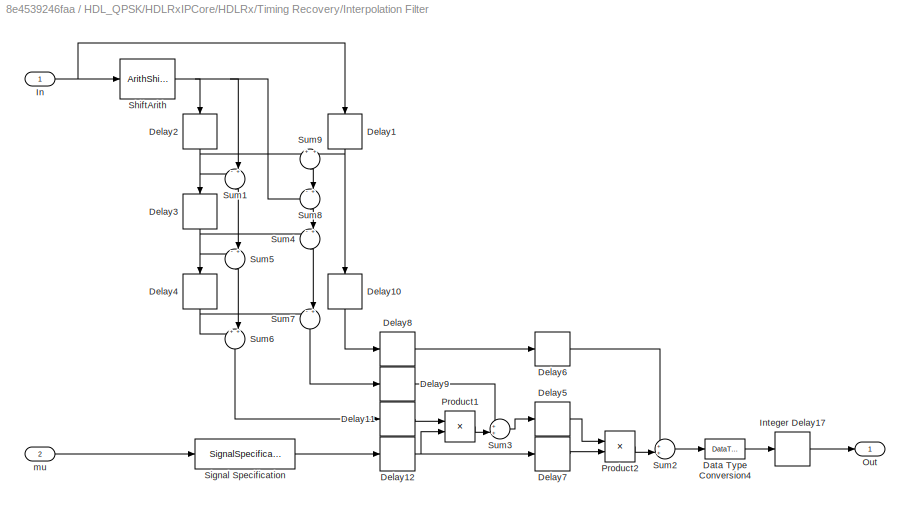
BLOCK [SubSystem] HDL_QPSK/HDLRxIPCore/HDLRx/Timing Recovery/Interpolation Filter
  Ports = [2, 1]
  RequestExecContextInheritance = off
  Variant = off
BLOCK [DataTypeConversion] HDL_QPSK/HDLRxIPCore/HDLRx/Timing Recovery/Interpolation Filter/Data Type Conversion4
  OutDataTypeStr = fixdt(1,16,10)
  RndMeth = Floor
  SaturateOnIntegerOverflow = off
BLOCK [Delay] HDL_QPSK/HDLRxIPCore/HDLRx/Timing Recovery/Interpolation Filter/Delay1
  DelayLength = 1
  InitialCondition = 0
  InputPortMap = u0
  Ports = [1, 1]
BLOCK [Delay] HDL_QPSK/HDLRxIPCore/HDLRx/Timing Recovery/Interpolation Filter/Delay10
  DelayLength = 1
  InitialCondition = 0
  InputPortMap = u0
  Ports = [1, 1]
BLOCK [Delay] HDL_QPSK/HDLRxIPCore/HDLRx/Timing Recovery/Interpolation Filter/Delay11
  DelayLength = 1
  InitialCondition = 0
  InputPortMap = u0
  Ports = [1, 1]
BLOCK [Delay] HDL_QPSK/HDLRxIPCore/HDLRx/Timing Recovery/Interpolation Filter/Delay12
  DelayLength = 1
  InitialCondition = 0
  InputPortMap = u0
  Ports = [1, 1]
BLOCK [Delay] HDL_QPSK/HDLRxIPCore/HDLRx/Timing Recovery/Interpolation Filter/Delay2
  DelayLength = 1
  InitialCondition = 0
  InputPortMap = u0
  Ports = [1, 1]
BLOCK [Delay] HDL_QPSK/HDLRxIPCore/HDLRx/Timing Recovery/Interpolation Filter/Delay3
  DelayLength = 1
  InitialCondition = 0
  InputPortMap = u0
  Ports = [1, 1]
BLOCK [Delay] HDL_QPSK/HDLRxIPCore/HDLRx/Timing Recovery/Interpolation Filter/Delay4
  DelayLength = 1
  InitialCondition = 0
  InputPortMap = u0
  Ports = [1, 1]
BLOCK [Delay] HDL_QPSK/HDLRxIPCore/HDLRx/Timing Recovery/Interpolation Filter/Delay5
  DelayLength = 1
  InitialCondition = 0
  InputPortMap = u0
  Ports = [1, 1]
BLOCK [Delay] HDL_QPSK/HDLRxIPCore/HDLRx/Timing Recovery/Interpolation Filter/Delay6
  DelayLength = 1
  InitialCondition = 0
  InputPortMap = u0
  Ports = [1, 1]
BLOCK [Delay] HDL_QPSK/HDLRxIPCore/HDLRx/Timing Recovery/Interpolation Filter/Delay7
  DelayLength = 1
  InitialCondition = 0
  InputPortMap = u0
  Ports = [1, 1]
BLOCK [Delay] HDL_QPSK/HDLRxIPCore/HDLRx/Timing Recovery/Interpolation Filter/Delay8
  DelayLength = 1
  InitialCondition = 0
  InputPortMap = u0
  Ports = [1, 1]
BLOCK [Delay] HDL_QPSK/HDLRxIPCore/HDLRx/Timing Recovery/Interpolation Filter/Delay9
  DelayLength = 1
  InitialCondition = 0
  InputPortMap = u0
  Ports = [1, 1]
BLOCK [Inport] HDL_QPSK/HDLRxIPCore/HDLRx/Timing Recovery/Interpolation Filter/In
  IconDisplay = Port number
BLOCK [Delay] HDL_QPSK/HDLRxIPCore/HDLRx/Timing Recovery/Interpolation Filter/Integer Delay17
  InputPortMap = u0
  InputProcessing = Inherited
  Ports = [1, 1]
  UserDataPersistent = on
BLOCK [Outport] HDL_QPSK/HDLRxIPCore/HDLRx/Timing Recovery/Interpolation Filter/Out
  IconDisplay = Port number
BLOCK [Product] HDL_QPSK/HDLRxIPCore/HDLRx/Timing Recovery/Interpolation Filter/Product1
  InputSameDT = off
  OutDataTypeStr = fixdt(1,16,10)
  Ports = [2, 1]
  SaturateOnIntegerOverflow = off
BLOCK [Product] HDL_QPSK/HDLRxIPCore/HDLRx/Timing Recovery/Interpolation Filter/Product2
  InputSameDT = off
  OutDataTypeStr = Inherit: Inherit via internal rule
  Ports = [2, 1]
  SaturateOnIntegerOverflow = off
BLOCK [ArithShift] HDL_QPSK/HDLRxIPCore/HDLRx/Timing Recovery/Interpolation Filter/ShiftArith
  BitShiftDirection = Right
  BitShiftNumber = 1
  InputPortMap = u0
  Ports = [1, 1]
BLOCK [SignalSpecification] HDL_QPSK/HDLRxIPCore/HDLRx/Timing Recovery/Interpolation Filter/Signal Specification
  Dimensions = 1
BLOCK [Sum] HDL_QPSK/HDLRxIPCore/HDLRx/Timing Recovery/Interpolation Filter/Sum1
  IconShape = round
  InputSameDT = off
  Inputs = -+|
  OutDataTypeStr = Inherit: Inherit via internal rule
  Ports = [2, 1]
  SaturateOnIntegerOverflow = off
BLOCK [Sum] HDL_QPSK/HDLRxIPCore/HDLRx/Timing Recovery/Interpolation Filter/Sum2
  IconShape = round
  InputSameDT = off
  Inputs = ++|
  OutDataTypeStr = Inherit: Inherit via internal rule
  Ports = [2, 1]
  SaturateOnIntegerOverflow = off
BLOCK [Sum] HDL_QPSK/HDLRxIPCore/HDLRx/Timing Recovery/Interpolation Filter/Sum3
  IconShape = round
  InputSameDT = off
  Inputs = ++|
  OutDataTypeStr = fixdt(1,16,10)
  Ports = [2, 1]
  SaturateOnIntegerOverflow = off
BLOCK [Sum] HDL_QPSK/HDLRxIPCore/HDLRx/Timing Recovery/Interpolation Filter/Sum4
  IconShape = round
  InputSameDT = off
  Inputs = -+|
  OutDataTypeStr = Inherit: Inherit via internal rule
  Ports = [2, 1]
  SaturateOnIntegerOverflow = off
BLOCK [Sum] HDL_QPSK/HDLRxIPCore/HDLRx/Timing Recovery/Interpolation Filter/Sum5
  IconShape = round
  InputSameDT = off
  Inputs = -+|
  OutDataTypeStr = Inherit: Inherit via internal rule
  Ports = [2, 1]
  SaturateOnIntegerOverflow = off
BLOCK [Sum] HDL_QPSK/HDLRxIPCore/HDLRx/Timing Recovery/Interpolation Filter/Sum6
  IconShape = round
  InputSameDT = off
  Inputs = ++|
  OutDataTypeStr = fixdt(1,16,11)
  Ports = [2, 1]
BLOCK [Sum] HDL_QPSK/HDLRxIPCore/HDLRx/Timing Recovery/Interpolation Filter/Sum7
  IconShape = round
  InputSameDT = off
  Inputs = -+|
  OutDataTypeStr = fixdt(1,16,10)
  Ports = [2, 1]
  SaturateOnIntegerOverflow = off
BLOCK [Sum] HDL_QPSK/HDLRxIPCore/HDLRx/Timing Recovery/Interpolation Filter/Sum8
  IconShape = round
  InputSameDT = off
  Inputs = -+|
  OutDataTypeStr = Inherit: Inherit via internal rule
  Ports = [2, 1]
  SaturateOnIntegerOverflow = off
BLOCK [Sum] HDL_QPSK/HDLRxIPCore/HDLRx/Timing Recovery/Interpolation Filter/Sum9
  IconShape = round
  InputSameDT = off
  Inputs = +|+
  OutDataTypeStr = Inherit: Inherit via internal rule
  Ports = [2, 1]
  SaturateOnIntegerOverflow = off
BLOCK [Inport] HDL_QPSK/HDLRxIPCore/HDLRx/Timing Recovery/Interpolation Filter/mu
  IconDisplay = Port number
  Port = 2
BLOCK [SubSystem] HDL_QPSK/HDLRxIPCore/HDLRx/Timing Recovery/Loop Filter
  Ports = [1, 1]
  RequestExecContextInheritance = off
  Variant = off
BLOCK [DataTypeConversion] HDL_QPSK/HDLRxIPCore/HDLRx/Timing Recovery/Loop Filter/Data Type Conversion17
  OutDataTypeStr = fixdt(1,11,10)
  RndMeth = Floor
  SaturateOnIntegerOverflow = off
BLOCK [Delay] HDL_QPSK/HDLRxIPCore/HDLRx/Timing Recovery/Loop Filter/Delay1
  DelayLength = 1
  InitialCondition = 0
  InputPortMap = u0
  Ports = [1, 1]
BLOCK [Delay] HDL_QPSK/HDLRxIPCore/HDLRx/Timing Recovery/Loop Filter/Delay2
  DelayLength = 1
  InitialCondition = 0
  InputPortMap = u0
  Ports = [1, 1]
BLOCK [Delay] HDL_QPSK/HDLRxIPCore/HDLRx/Timing Recovery/Loop Filter/Delay4
  DelayLength = 1
  InitialCondition = 0
  InputPortMap = u0
  Ports = [1, 1]
BLOCK [SubSystem] HDL_QPSK/HDLRxIPCore/HDLRx/Timing Recovery/Loop Filter/Digital Filter
  Ports = [1, 1]
  RequestExecContextInheritance = off
  Variant = off
BLOCK [Sum] HDL_QPSK/HDLRxIPCore/HDLRx/Timing Recovery/Loop Filter/Digital Filter/Add2
  InputSameDT = off
  OutDataTypeStr = fixdt(1,40,33)
  Ports = [2, 1]
  SaturateOnIntegerOverflow = off
BLOCK [Inport] HDL_QPSK/HDLRxIPCore/HDLRx/Timing Recovery/Loop Filter/Digital Filter/In1
  IconDisplay = Port number
BLOCK [Outport] HDL_QPSK/HDLRxIPCore/HDLRx/Timing Recovery/Loop Filter/Digital Filter/Out1
  IconDisplay = Port number
BLOCK [UnitDelay] HDL_QPSK/HDLRxIPCore/HDLRx/Timing Recovery/Loop Filter/Digital Filter/Unit Delay1
  InputProcessing = Elements as channels (sample based)
  SampleTime = -1
BLOCK [Gain] HDL_QPSK/HDLRxIPCore/HDLRx/Timing Recovery/Loop Filter/K1
  Gain = K1
  OutDataTypeStr = fixdt(1,40,33)
  ParamDataTypeStr = Inherit: Inherit via internal rule
  SaturateOnIntegerOverflow = off
BLOCK [Gain] HDL_QPSK/HDLRxIPCore/HDLRx/Timing Recovery/Loop Filter/K2
  Gain = K2
  OutDataTypeStr = Inherit: Inherit via internal rule
  ParamDataTypeStr = Inherit: Inherit via internal rule
  SaturateOnIntegerOverflow = off
BLOCK [Sum] HDL_QPSK/HDLRxIPCore/HDLRx/Timing Recovery/Loop Filter/Sum2
  OutDataTypeStr = Inherit: Inherit via internal rule
  Ports = [2, 1]
BLOCK [Inport] HDL_QPSK/HDLRxIPCore/HDLRx/Timing Recovery/Loop Filter/e
  IconDisplay = Port number
BLOCK [Outport] HDL_QPSK/HDLRxIPCore/HDLRx/Timing Recovery/Loop Filter/v
  IconDisplay = Port number
BLOCK [SubSystem] HDL_QPSK/HDLRxIPCore/HDLRx/Timing Recovery/Timing Error Detector
  ErrorFcn = Stateflow.Translate.translate
  PermitHierarchicalResolution = ExplicitOnly
  Ports = [2, 1]
  RequestExecContextInheritance = off
  SFBlockType = MATLAB Function
  TreatAsAtomicUnit = on
  Variant = off
BLOCK [Demux] HDL_QPSK/HDLRxIPCore/HDLRx/Timing Recovery/Timing Error Detector/ Demux 
  Outputs = 1
  Ports = [1, 1]
BLOCK [S-Function] HDL_QPSK/HDLRxIPCore/HDLRx/Timing Recovery/Timing Error Detector/ SFunction 
  EnableBusSupport = on
  FunctionName = sf_sfun
  PortCounts = [2 2]
  Ports = [2, 2]
  SFunctionDeploymentMode = off
  Tag = Stateflow S-Function zynqRadioHWSWQPSKAD9361AD9364SL 6
BLOCK [Terminator] HDL_QPSK/HDLRxIPCore/HDLRx/Timing Recovery/Timing Error Detector/ Terminator 
BLOCK [Inport] HDL_QPSK/HDLRxIPCore/HDLRx/Timing Recovery/Timing Error Detector/In
  IconDisplay = Port number
BLOCK [Outport] HDL_QPSK/HDLRxIPCore/HDLRx/Timing Recovery/Timing Error Detector/e
  IconDisplay = Port number
BLOCK [Inport] HDL_QPSK/HDLRxIPCore/HDLRx/Timing Recovery/Timing Error Detector/strobe
  IconDisplay = Port number
  Port = 2
BLOCK [Outport] HDL_QPSK/HDLRxIPCore/HDLRx/Timing Recovery/dValid
  IconDisplay = Port number
BLOCK [Outport] HDL_QPSK/HDLRxIPCore/HDLRx/dValidOut
  IconDisplay = Port number
  Port = 2
BLOCK [Inport] HDL_QPSK/HDLRxIPCore/HDLRx/dataInCh1
  IconDisplay = Port number
BLOCK [Outport] HDL_QPSK/HDLRxIPCore/HDLRx/dataOutCh1
  IconDisplay = Port number
BLOCK [Inport] HDL_QPSK/HDLRxIPCore/Imag_In
  IconDisplay = Port number
  Port = 2
BLOCK [Outport] HDL_QPSK/HDLRxIPCore/Imag_Out
  IconDisplay = Port number
  Port = 2
BLOCK [RealImagToComplex] HDL_QPSK/HDLRxIPCore/Real-Imag to Complex
  Ports = [2, 1]
BLOCK [Inport] HDL_QPSK/HDLRxIPCore/Real_In
  IconDisplay = Port number
BLOCK [Outport] HDL_QPSK/HDLRxIPCore/Real_Out
  IconDisplay = Port number
BLOCK [Reference] HDL_QPSK/HDLRxIPCore/Repeat  REF=dspsigops/Repeat
  Ports = [1, 1]
  SourceBlock = dspsigops/Repeat
  SourceType = Repeat
  UserDataPersistent = on
BLOCK [Reference] HDL_QPSK/HDLRxIPCore/Upsample  REF=dspsigops/Upsample
  Ports = [1, 1]
  SourceBlock = dspsigops/Upsample
  SourceType = Upsample
  UserDataPersistent = on
BLOCK [Inport] HDL_QPSK/HDLRxIPCore/Valid_In
  IconDisplay = Port number
  Port = 3
BLOCK [Outport] HDL_QPSK/HDLRxIPCore/Valid_Out
  IconDisplay = Port number
  Port = 3
BLOCK [SubSystem] HDL_QPSK/HDLTxIPCore
  Ports = [4, 3]
  RequestExecContextInheritance = off
  TreatAsAtomicUnit = on
  Variant = off
BLOCK [ComplexToRealImag] HDL_QPSK/HDLTxIPCore/Complex to Real-Imag1
  Ports = [1, 2]
BLOCK [Delay] HDL_QPSK/HDLTxIPCore/Delay
  DelayLength = 1
  InputPortMap = u0
  Ports = [1, 1]
BLOCK [Delay] HDL_QPSK/HDLTxIPCore/Enabled Delay
  DelayLength = 1
  InputPortMap = u0,e6
  Ports = [2, 1]
  ShowEnablePort = on
BLOCK [SubSystem] HDL_QPSK/HDLTxIPCore/HDLTx
  Ports = [3, 2]
  RequestExecContextInheritance = off
  Variant = off
BLOCK [SubSystem] HDL_QPSK/HDLTxIPCore/HDLTx/Data Generation & Packetization
  Ports = [0, 2]
  RequestExecContextInheritance = off
  Variant = off
BLOCK [Outport] HDL_QPSK/HDLTxIPCore/HDLTx/Data Generation & Packetization/Bit Pair
  IconDisplay = Port number
  Port = 2
BLOCK [SubSystem] HDL_QPSK/HDLTxIPCore/HDLTx/Data Generation & Packetization/Bit Pairing
  Ports = [1, 1]
  RequestExecContextInheritance = off
  Variant = off
BLOCK [Reference] HDL_QPSK/HDLTxIPCore/HDLTx/Data Generation & Packetization/Bit Pairing/Bit Concat  REF=hdlsllib/HDL Operations/Bit Concat
  Ports = [2, 1]
  SourceBlock = hdlsllib/HDL Operations/Bit Concat
  SourceType = Bit Concat
BLOCK [Outport] HDL_QPSK/HDLTxIPCore/HDLTx/Data Generation & Packetization/Bit Pairing/Bit Pair
  IconDisplay = Port number
BLOCK [Delay] HDL_QPSK/HDLTxIPCore/HDLTx/Data Generation & Packetization/Bit Pairing/Delay1
  DelayLength = 1
  InputPortMap = u0
  Ports = [1, 1]
BLOCK [Delay] HDL_QPSK/HDLTxIPCore/HDLTx/Data Generation & Packetization/Bit Pairing/Delay2
  DelayLength = 1
  InputPortMap = u0
  Ports = [1, 1]
BLOCK [DownSample] HDL_QPSK/HDLTxIPCore/HDLTx/Data Generation & Packetization/Bit Pairing/Downsample
  InputProcessing = Elements as channels (sample based)
  RateOptions = Allow multirate processing
  UserDataPersistent = on
  phase = 1
BLOCK [DownSample] HDL_QPSK/HDLTxIPCore/HDLTx/Data Generation & Packetization/Bit Pairing/Downsample1
  InputProcessing = Elements as channels (sample based)
  RateOptions = Allow multirate processing
  UserDataPersistent = on
BLOCK [Inport] HDL_QPSK/HDLTxIPCore/HDLTx/Data Generation & Packetization/Bit Pairing/Serial In
  IconDisplay = Port number
BLOCK [SubSystem] HDL_QPSK/HDLTxIPCore/HDLTx/Data Generation & Packetization/Data Source
  Ports = [3, 1]
  RequestExecContextInheritance = off
  Variant = off
BLOCK [SubSystem] HDL_QPSK/HDLTxIPCore/HDLTx/Data Generation & Packetization/Data Source/HDL Data Scrambler
  Ports = [1, 1, 1]
  RequestExecContextInheritance = off
  TreatAsAtomicUnit = on
  Variant = off
BLOCK [Logic] HDL_QPSK/HDLTxIPCore/HDLTx/Data Generation & Packetization/Data Source/HDL Data Scrambler/BIT_XOR
  AllPortsSameDT = off
  IconShape = distinctive
  Operator = XOR
  OutDataTypeStr = boolean
  Ports = [2, 1]
BLOCK [Logic] HDL_QPSK/HDLTxIPCore/HDLTx/Data Generation & Packetization/Data Source/HDL Data Scrambler/BIT_XOR1
  AllPortsSameDT = off
  IconShape = distinctive
  Operator = XOR
  OutDataTypeStr = boolean
  Ports = [2, 1]
BLOCK [Logic] HDL_QPSK/HDLTxIPCore/HDLTx/Data Generation & Packetization/Data Source/HDL Data Scrambler/BIT_XOR2
  AllPortsSameDT = off
  IconShape = distinctive
  Operator = XOR
  OutDataTypeStr = boolean
  Ports = [2, 1]
BLOCK [Inport] HDL_QPSK/HDLTxIPCore/HDLTx/Data Generation & Packetization/Data Source/HDL Data Scrambler/Data_In
  IconDisplay = Port number
BLOCK [EnablePort] HDL_QPSK/HDLTxIPCore/HDLTx/Data Generation & Packetization/Data Source/HDL Data Scrambler/Enable
  Ports = []
BLOCK [Outport] HDL_QPSK/HDLTxIPCore/HDLTx/Data Generation & Packetization/Data Source/HDL Data Scrambler/Scrambled_Out
  IconDisplay = Port number
  InitialOutput = 0
BLOCK [Delay] HDL_QPSK/HDLTxIPCore/HDLTx/Data Generation & Packetization/Data Source/HDL Data Scrambler/p1
  DelayLength = 1
  InputPortMap = u0
  Ports = [1, 1]
BLOCK [Delay] HDL_QPSK/HDLTxIPCore/HDLTx/Data Generation & Packetization/Data Source/HDL Data Scrambler/p2
  DelayLength = 1
  InputPortMap = u0
  Ports = [1, 1]
BLOCK [Delay] HDL_QPSK/HDLTxIPCore/HDLTx/Data Generation & Packetization/Data Source/HDL Data Scrambler/p3
  DelayLength = 1
  InputPortMap = u0
  Ports = [1, 1]
BLOCK [Delay] HDL_QPSK/HDLTxIPCore/HDLTx/Data Generation & Packetization/Data Source/HDL Data Scrambler/p4
  DelayLength = 1
  InputPortMap = u0
  Ports = [1, 1]
BLOCK [Logic] HDL_QPSK/HDLTxIPCore/HDLTx/Data Generation & Packetization/Data Source/Logical Operator
  AllPortsSameDT = off
  Operator = NOT
  OutDataTypeStr = boolean
  Ports = [1, 1]
BLOCK [Delay] HDL_QPSK/HDLTxIPCore/HDLTx/Data Generation & Packetization/Data Source/Pipeline
  InitialCondition = 0
  InputPortMap = u0
  Ports = [1, 1]
BLOCK [Delay] HDL_QPSK/HDLTxIPCore/HDLTx/Data Generation & Packetization/Data Source/Pipeline1
  InitialCondition = 0
  InputPortMap = u0
  Ports = [1, 1]
BLOCK [Delay] HDL_QPSK/HDLTxIPCore/HDLTx/Data Generation & Packetization/Data Source/Pipeline2
  DelayLength = 1
  InitialCondition = 0
  InputPortMap = u0
  Ports = [1, 1]
BLOCK [Delay] HDL_QPSK/HDLTxIPCore/HDLTx/Data Generation & Packetization/Data Source/Pipeline3
  DelayLength = 1
  InitialCondition = 0
  InputPortMap = u0
  Ports = [1, 1]
BLOCK [Delay] HDL_QPSK/HDLTxIPCore/HDLTx/Data Generation & Packetization/Data Source/Pipeline4
  DelayLength = 1
  InitialCondition = 0
  InputPortMap = u0
  Ports = [1, 1]
BLOCK [Switch] HDL_QPSK/HDLTxIPCore/HDLTx/Data Generation & Packetization/Data Source/Preamble Data Mux
  Criteria = u2 ~= 0
  InputSameDT = off
  SaturateOnIntegerOverflow = off
BLOCK [Reference] HDL_QPSK/HDLTxIPCore/HDLTx/Data Generation & Packetization/Data Source/data counter  REF=hdlsllib/HDL Operations/HDL Counter
  Ports = [1, 1]
  SourceBlock = hdlsllib/HDL Operations/HDL Counter
  SourceType = HDL Counter
BLOCK [LookupNDDirect] HDL_QPSK/HDLTxIPCore/HDLTx/Data Generation & Packetization/Data Source/data lookup
  DiagnosticForOutOfRangeInput = Error
  NumberOfTableDimensions = 1
  Ports = [1, 1]
  Table = [qpsktxhdl.data]
  TableDataTypeStr = boolean
BLOCK [Inport] HDL_QPSK/HDLTxIPCore/HDLTx/Data Generation & Packetization/Data Source/load data
  IconDisplay = Port number
  Port = 3
BLOCK [Inport] HDL_QPSK/HDLTxIPCore/HDLTx/Data Generation & Packetization/Data Source/load preamble
  IconDisplay = Port number
  Port = 2
BLOCK [Outport] HDL_QPSK/HDLTxIPCore/HDLTx/Data Generation & Packetization/Data Source/packets
  IconDisplay = Port number
BLOCK [Reference] HDL_QPSK/HDLTxIPCore/HDLTx/Data Generation & Packetization/Data Source/preamble counter  REF=hdlsllib/HDL Operations/HDL Counter
  Ports = [2, 1]
  SourceBlock = hdlsllib/HDL Operations/HDL Counter
  SourceType = HDL Counter
BLOCK [LookupNDDirect] HDL_QPSK/HDLTxIPCore/HDLTx/Data Generation & Packetization/Data Source/preamble lookup
  DiagnosticForOutOfRangeInput = Error
  NumberOfTableDimensions = 1
  Ports = [1, 1]
  Table = [qpsktxhdl.preamble]
  TableDataTypeStr = boolean
BLOCK [Inport] HDL_QPSK/HDLTxIPCore/HDLTx/Data Generation & Packetization/Data Source/reset preamble
  IconDisplay = Port number
BLOCK [DownSample] HDL_QPSK/HDLTxIPCore/HDLTx/Data Generation & Packetization/Downsample
  InputProcessing = Elements as channels (sample based)
  RateOptions = Allow multirate processing
  UserDataPersistent = on
BLOCK [SubSystem] HDL_QPSK/HDLTxIPCore/HDLTx/Data Generation & Packetization/PacketizerFSM
  ErrorFcn = Stateflow.Translate.translate
  PermitHierarchicalResolution = ExplicitOnly
  Ports = [0, 3]
  RequestExecContextInheritance = off
  SFBlockType = MATLAB Function
  SystemSampleTime = 1/sdrzQPSKrxFPGA.RadioFrontEndSampleRate*2
  TreatAsAtomicUnit = on
  Variant = off
BLOCK [Demux] HDL_QPSK/HDLTxIPCore/HDLTx/Data Generation & Packetization/PacketizerFSM/ Demux 
  Outputs = 1
  Ports = [1, 1]
BLOCK [Ground] HDL_QPSK/HDLTxIPCore/HDLTx/Data Generation & Packetization/PacketizerFSM/ Ground 
BLOCK [S-Function] HDL_QPSK/HDLTxIPCore/HDLTx/Data Generation & Packetization/PacketizerFSM/ SFunction 
  EnableBusSupport = on
  FunctionName = sf_sfun
  PortCounts = [1 4]
  Ports = [1, 4]
  SFunctionDeploymentMode = off
  Tag = Stateflow S-Function zynqRadioHWSWQPSKAD9361AD9364SL 7
BLOCK [Terminator] HDL_QPSK/HDLTxIPCore/HDLTx/Data Generation & Packetization/PacketizerFSM/ Terminator 
BLOCK [Outport] HDL_QPSK/HDLTxIPCore/HDLTx/Data Generation & Packetization/PacketizerFSM/load_data
  IconDisplay = Port number
  Port = 3
BLOCK [Outport] HDL_QPSK/HDLTxIPCore/HDLTx/Data Generation & Packetization/PacketizerFSM/load_preamble
  IconDisplay = Port number
  Port = 2
BLOCK [Outport] HDL_QPSK/HDLTxIPCore/HDLTx/Data Generation & Packetization/PacketizerFSM/reset_preamble
  IconDisplay = Port number
BLOCK [Delay] HDL_QPSK/HDLTxIPCore/HDLTx/Data Generation & Packetization/Pipeline
  InitialCondition = 0
  InputPortMap = u0
  Ports = [1, 1]
BLOCK [Delay] HDL_QPSK/HDLTxIPCore/HDLTx/Data Generation & Packetization/Pipeline1
  DelayLength = 1
  InitialCondition = 0
  InputPortMap = u0
  Ports = [1, 1]
BLOCK [Delay] HDL_QPSK/HDLTxIPCore/HDLTx/Data Generation & Packetization/Pipeline2
  DelayLength = 1
  InitialCondition = 0
  InputPortMap = u0
  Ports = [1, 1]
BLOCK [Delay] HDL_QPSK/HDLTxIPCore/HDLTx/Data Generation & Packetization/Pipeline3
  DelayLength = 1
  InitialCondition = 0
  InputPortMap = u0
  Ports = [1, 1]
BLOCK [Constant] HDL_QPSK/HDLTxIPCore/HDLTx/Data Generation & Packetization/Valid
  OutDataTypeStr = boolean
  SampleTime = 1/sdrzQPSKrxFPGA.RadioFrontEndSampleRate*2
BLOCK [Outport] HDL_QPSK/HDLTxIPCore/HDLTx/Data Generation & Packetization/Valid Out
  IconDisplay = Port number
BLOCK [Delay] HDL_QPSK/HDLTxIPCore/HDLTx/Delay1
  DelayLength = 1
  InitialCondition = 0
  InputPortMap = u0
  Ports = [1, 1]
BLOCK [Delay] HDL_QPSK/HDLTxIPCore/HDLTx/Delay2
  DelayLength = 1
  InitialCondition = 0
  InputPortMap = u0
  Ports = [1, 1]
BLOCK [Delay] HDL_QPSK/HDLTxIPCore/HDLTx/Delay3
  DelayLength = 1
  InitialCondition = 0
  InputPortMap = u0
  Ports = [1, 1]
BLOCK [Delay] HDL_QPSK/HDLTxIPCore/HDLTx/Delay4
  DelayLength = 1
  InitialCondition = 0
  InputPortMap = u0
  Ports = [1, 1]
BLOCK [Delay] HDL_QPSK/HDLTxIPCore/HDLTx/Delay5
  DelayLength = 1
  InitialCondition = 0
  InputPortMap = u0
  Ports = [1, 1]
BLOCK [Delay] HDL_QPSK/HDLTxIPCore/HDLTx/Delay6
  DelayLength = 1
  InitialCondition = 0
  InputPortMap = u0
  Ports = [1, 1]
BLOCK [Delay] HDL_QPSK/HDLTxIPCore/HDLTx/Delay7
  DelayLength = 1
  InitialCondition = 0
  InputPortMap = u0
  Ports = [1, 1]
BLOCK [Delay] HDL_QPSK/HDLTxIPCore/HDLTx/Delay8
  DelayLength = 1
  InitialCondition = 0
  InputPortMap = u0
  Ports = [1, 1]
BLOCK [Delay] HDL_QPSK/HDLTxIPCore/HDLTx/Delay9
  DelayLength = 1
  InitialCondition = 0
  InputPortMap = u0
  Ports = [1, 1]
BLOCK [DownSample] HDL_QPSK/HDLTxIPCore/HDLTx/Downsample
  InputProcessing = Elements as channels (sample based)
  N = sdrzQPSKTxFPGA_params.Upsampling
  RateOptions = Allow multirate processing
BLOCK [DownSample] HDL_QPSK/HDLTxIPCore/HDLTx/Downsample1
  InputProcessing = Elements as channels (sample based)
  N = sdrzQPSKTxFPGA_params.Upsampling
  RateOptions = Allow multirate processing
BLOCK [DownSample] HDL_QPSK/HDLTxIPCore/HDLTx/Downsample2
  InputProcessing = Elements as channels (sample based)
  N = sdrzQPSKTxFPGA_params.Upsampling
  RateOptions = Allow multirate processing
BLOCK [SubSystem] HDL_QPSK/HDLTxIPCore/HDLTx/Host to FPGA Unpacking
  Ports = [1, 1]
  RequestExecContextInheritance = off
  Variant = off
BLOCK [Reference] HDL_QPSK/HDLTxIPCore/HDLTx/Host to FPGA Unpacking/Bit Concat  REF=hdlsllib/HDL Operations/Bit Concat
  Ports = [2, 1]
  SourceBlock = hdlsllib/HDL Operations/Bit Concat
  SourceType = Bit Concat
BLOCK [Reference] HDL_QPSK/HDLTxIPCore/HDLTx/Host to FPGA Unpacking/Bit Slice1  REF=hdlsllib/HDL Operations/Bit Slice
  Ports = [1, 1]
  SourceBlock = hdlsllib/HDL Operations/Bit Slice
  SourceType = Bit Slice
BLOCK [Reference] HDL_QPSK/HDLTxIPCore/HDLTx/Host to FPGA Unpacking/Bit Slice2  REF=hdlsllib/HDL Operations/Bit Slice
  Ports = [1, 1]
  SourceBlock = hdlsllib/HDL Operations/Bit Slice
  SourceType = Bit Slice
BLOCK [Outport] HDL_QPSK/HDLTxIPCore/HDLTx/Host to FPGA Unpacking/BitPair
  IconDisplay = Port number
BLOCK [ComplexToRealImag] HDL_QPSK/HDLTxIPCore/HDLTx/Host to FPGA Unpacking/Complex to Real-Imag
  Ports = [1, 2]
BLOCK [Inport] HDL_QPSK/HDLTxIPCore/HDLTx/Host to FPGA Unpacking/In
  IconDisplay = Port number
BLOCK [SubSystem] HDL_QPSK/HDLTxIPCore/HDLTx/Pulse Shaping
  Ports = [1, 1]
  RequestExecContextInheritance = off
  Variant = off
BLOCK [Outport] HDL_QPSK/HDLTxIPCore/HDLTx/Pulse Shaping/Pulse Shaped
  IconDisplay = Port number
BLOCK [Inport] HDL_QPSK/HDLTxIPCore/HDLTx/Pulse Shaping/QPSK Symbols
  IconDisplay = Port number
BLOCK [Reference] HDL_QPSK/HDLTxIPCore/HDLTx/Pulse Shaping/RRC Interpolation Filter  REF=dspmlti4/FIR
Interpolation
  Ports = [1, 1]
  SourceBlock = dspmlti4/FIR\nInterpolation
  SourceType = FIR Interpolation
  UserDataPersistent = on
BLOCK [Reference] HDL_QPSK/HDLTxIPCore/HDLTx/Repeat  REF=dspsigops/Repeat
  Ports = [1, 1]
  SourceBlock = dspsigops/Repeat
  SourceType = Repeat
  UserDataPersistent = on
BLOCK [Switch] HDL_QPSK/HDLTxIPCore/HDLTx/Switch
  Criteria = u2 ~= 0
  InputSameDT = off
  SaturateOnIntegerOverflow = off
BLOCK [Switch] HDL_QPSK/HDLTxIPCore/HDLTx/Switch1
  Criteria = u2 ~= 0
  InputSameDT = off
  SaturateOnIntegerOverflow = off
BLOCK [SubSystem] HDL_QPSK/HDLTxIPCore/HDLTx/Symbol Mapping
  Ports = [1, 1]
  RequestExecContextInheritance = off
  Variant = off
BLOCK [Inport] HDL_QPSK/HDLTxIPCore/HDLTx/Symbol Mapping/Bit Pair
  IconDisplay = Port number
BLOCK [Reference] HDL_QPSK/HDLTxIPCore/HDLTx/Symbol Mapping/QPSK Modulator Baseband  REF=commdigbbndpm3/QPSK
Modulator
Baseband
  Ports = [1, 1]
  SourceBlock = commdigbbndpm3/QPSK\nModulator\nBaseband
  SourceType = QPSK Modulator Baseband
BLOCK [Outport] HDL_QPSK/HDLTxIPCore/HDLTx/Symbol Mapping/QPSK Symbols
  IconDisplay = Port number
BLOCK [Inport] HDL_QPSK/HDLTxIPCore/HDLTx/dataInCh1
  IconDisplay = Port number
BLOCK [Outport] HDL_QPSK/HDLTxIPCore/HDLTx/dataoutCh1
  IconDisplay = Port number
BLOCK [Inport] HDL_QPSK/HDLTxIPCore/HDLTx/txSrcSelect
  IconDisplay = Port number
  Port = 3
BLOCK [Inport] HDL_QPSK/HDLTxIPCore/HDLTx/validInCh1
  IconDisplay = Port number
  Port = 2
BLOCK [Outport] HDL_QPSK/HDLTxIPCore/HDLTx/validoutCh1
  IconDisplay = Port number
  Port = 2
BLOCK [Inport] HDL_QPSK/HDLTxIPCore/Imag_In
  IconDisplay = Port number
  Port = 2
BLOCK [Outport] HDL_QPSK/HDLTxIPCore/Imag_Out
  IconDisplay = Port number
  Port = 2
BLOCK [RealImagToComplex] HDL_QPSK/HDLTxIPCore/Real-Imag to Complex
  Ports = [2, 1]
BLOCK [Inport] HDL_QPSK/HDLTxIPCore/Real_In
  IconDisplay = Port number
BLOCK [Outport] HDL_QPSK/HDLTxIPCore/Real_Out
  IconDisplay = Port number
BLOCK [Inport] HDL_QPSK/HDLTxIPCore/Valid_In
  IconDisplay = Port number
  Port = 3
BLOCK [Outport] HDL_QPSK/HDLTxIPCore/Valid_Out
  IconDisplay = Port number
  Port = 3
BLOCK [Inport] HDL_QPSK/HDLTxIPCore/txSrcSelect
  IconDisplay = Port number
  Port = 4
BLOCK [Inport] HDL_QPSK/InRxImag
  IconDisplay = Port number
  Port = 5
BLOCK [Inport] HDL_QPSK/InRxReal
  IconDisplay = Port number
  Port = 4
BLOCK [Inport] HDL_QPSK/InRxValid
  IconDisplay = Port number
  Port = 6
BLOCK [Inport] HDL_QPSK/InTxImag
  IconDisplay = Port number
  Port = 2
BLOCK [Inport] HDL_QPSK/InTxReal
  IconDisplay = Port number
BLOCK [Inport] HDL_QPSK/InTxValid
  IconDisplay = Port number
  Port = 3
BLOCK [Outport] HDL_QPSK/OutRxImag
  IconDisplay = Port number
  Port = 5
BLOCK [Outport] HDL_QPSK/OutRxReal
  IconDisplay = Port number
  Port = 4
BLOCK [Outport] HDL_QPSK/OutRxValid
  IconDisplay = Port number
  Port = 6
BLOCK [Outport] HDL_QPSK/OutTxImag
  IconDisplay = Port number
  Port = 2
BLOCK [Outport] HDL_QPSK/OutTxReal
  IconDisplay = Port number
BLOCK [Outport] HDL_QPSK/OutTxValid
  IconDisplay = Port number
  Port = 3
BLOCK [Inport] HDL_QPSK/txSrcSelect
  IconDisplay = Port number
  Port = 7
BLOCK [SubSystem] Host to FPGA Packing
  Ports = [1, 1]
  RequestExecContextInheritance = off
  Variant = off
BLOCK [Outport] Host to FPGA Packing/Bit Pair
  IconDisplay = Port number
BLOCK [DataTypeConversion] Host to FPGA Packing/Data Type Conversion1
  OutDataTypeStr = int16
  RndMeth = Floor
  SaturateOnIntegerOverflow = off
BLOCK [DownSample] Host to FPGA Packing/Downsample
  RateOptions = Allow multirate processing
  UserDataPersistent = on
BLOCK [DownSample] Host to FPGA Packing/Downsample1
  RateOptions = Allow multirate processing
  UserDataPersistent = on
  phase = 1
BLOCK [RealImagToComplex] Host to FPGA Packing/Real-Imag to Complex
  Ports = [2, 1]
BLOCK [Inport] Host to FPGA Packing/Serial In
  IconDisplay = Port number
BLOCK [ManualSwitch] Internal Tx Switch
BLOCK [RateTransition] Rate Transition
BLOCK [RealImagToComplex] Real-Imag to Complex1
  Ports = [2, 1]
BLOCK [Reference] Repeat  REF=dspsigops/Repeat
  Ports = [1, 1]
  SourceBlock = dspsigops/Repeat
  SourceType = Repeat
  UserDataPersistent = on
BLOCK [Reference] Serializer1D Tx  REF=hdlsllib/HDL Operations/Serializer1D
  Ports = [1, 2]
  SourceBlock = hdlsllib/HDL Operations/Serializer1D
  SourceType = Serializer1D
BLOCK [Switch] Switch
  Criteria = u2 ~= 0
  InputSameDT = off
  SaturateOnIntegerOverflow = off
BLOCK [Switch] Switch1
  Criteria = u2 ~= 0
  InputSameDT = off
  SaturateOnIntegerOverflow = off
ANNOTATION (root): HW/SW Co-design QPSK Transmitter and Receiver Using Analog Devices AD9361/ AD9364 Hardware Generation Model
ANNOTATION (root): Select Tx source: true = FPGA, false = ARM "txtstr" can be modified before compile time (must be <24 char)
ANNOTATION (root): <copyright redacted>
ANNOTATION (root): Frames to samples
ANNOTATION (root): Rx ARM Algorithm
ANNOTATION (root): Samples to frames
ANNOTATION (root): Tx ARM Algorithm
ANNOTATION (root): Tx and Rx Hardware Algorithms
ANNOTATION Bit Generation1: Each data frame contains 26 bits header (For Sync Purpose) and 174 bits data bits which contain the txtStr message.Scrambler is there to improve data transition density and frequency offset estimation.
ANNOTATION HDL_QPSK/HDLRxIPCore/HDLRx/Automatic Gain Control/Modulus: sqrt(I^2+Q^2) can be approximated as |L|+0.4*|S|, where |L| is the absolute value of the larger of I or Q, and |S| is the absolute value of the smaller of I or Q. See "|L|+0.4|S| Algorithm" on page 238 in "Digital Signal Processing in Communication Systems" by Marvin Frerking.
ANNOTATION HDL_QPSK/HDLRxIPCore/HDLRx/Data Decoding/Modulus: sqrt(I^2+Q^2) can be approximated as |L|+0.4*|S|, where |L| is the absolute value of the larger of I or Q, and |S| is the absolute value of the smaller of I or Q. See "|L|+0.4|S| Algorithm" on page 238 in "Digital Signal Processing in Communication Systems" by Marvin Frerking.
ANNOTATION HDL_QPSK/HDLRxIPCore/HDLRx/Fine Frequency Compensation/Loop Filter: Proportional-plus-Integrator Loop Filter, Infinite DC Response to guarantee convergence
ANNOTATION HDL_QPSK/HDLRxIPCore/HDLRx/Timing Recovery/Loop Filter: Proportional-Plus-Integrator Loop Filter, Infinite DC Response to guarantee convergence
ANNOTATION HDL_QPSK/HDLTxIPCore/HDLTx/Data Generation & Packetization/Data Source/HDL Data Scrambler: HDL optimized scrambler, implementing the scrambler polynomial [1 1 1 0 1], with initial states [0 0 0 0]
LINE Bit Generation1/Barker Code SS/Constant Barker Code:1 -> Bit Generation1/Barker Code SS/Out:1
LINE Bit Generation1/Barker Code SS:1 -> Bit Generation1/Repeat:1
LINE Bit Generation1/Frame Conversion:1 -> Bit Generation1/Out:1
LINE Bit Generation1/Matrix Concatenate:1 -> Bit Generation1/Frame Conversion:1
LINE Bit Generation1/Message Source/Bernoulli Binary Generator:1 -> Bit Generation1/Message Source/Matrix Concatenate:2
LINE Bit Generation1/Message Source/Integer to Bit Converter:1 -> Bit Generation1/Message Source/Matrix Concatenate:1
LINE Bit Generation1/Message Source/Matrix Concatenate:1 -> Bit Generation1/Message Source/Out:1
LINE Bit Generation1/Message Source/Scroll text:1 -> Bit Generation1/Message Source/Integer to Bit Converter:1
LINE Bit Generation1/Message Source:1 -> Bit Generation1/Scrambler:1
LINE Bit Generation1/Repeat:1 -> Bit Generation1/Matrix Concatenate:1
LINE Bit Generation1/Scrambler:1 -> Bit Generation1/Matrix Concatenate:2
LINE Bit Generation1:1 -> Host to FPGA Packing:1
LINE Complex to Real-Imag1:1 -> HDL_QPSK:1
LINE Complex to Real-Imag1:2 -> HDL_QPSK:2
LINE Constant1:1 -> Internal Tx Switch:1
LINE Constant2:1 -> Switch1:3
LINE Constant3:1 -> Switch1:1
LINE Constant4:1 -> Switch:1
LINE Constant5:1 -> Switch:3
LINE Constant:1 -> Internal Tx Switch:2
LINE Delay1:1 -> HDL_QPSK:5
LINE Delay2:1 -> HDL_QPSK:6
LINE Delay:1 -> HDL_QPSK:4
LINE Descramble and Print/DataFramer:1 -> Descramble and Print/Descrambling:1
LINE Descramble and Print/Descrambling/Descrambler:1 -> Descramble and Print/Descrambling/Selector1:1
LINE Descramble and Print/Descrambling/In:1 -> Descramble and Print/Descrambling/Selector:1
LINE Descramble and Print/Descrambling/Selector1:1 -> Descramble and Print/Descrambling/Out:1
LINE Descramble and Print/Descrambling/Selector:1 -> Descramble and Print/Descrambling/Descrambler:1
LINE Descramble and Print/Descrambling/Size:1 -> Descramble and Print/Descrambling/Selector1:2
LINE Descramble and Print/Descrambling:1 -> Descramble and Print/BitsToDecimal1:1
LINE Descramble and Print/In1:1 -> Descramble and Print/DataFramer:1
LINE Descramble and Print/Size:1 -> Descramble and Print/Descrambling:2
LINE Deserializer1D Rx:1 -> Descramble and Print:1
LINE Deserializer1D Rx:2 -> Descramble and Print:enable
LINE From1:1 -> Delay1:1
LINE From2:1 -> Delay2:1
LINE From:1 -> Delay:1
LINE HDL_QPSK/HDLRxIPCore/Complex to Real-Imag1:1 -> HDL_QPSK/HDLRxIPCore/Real_Out:1
LINE HDL_QPSK/HDLRxIPCore/Complex to Real-Imag1:2 -> HDL_QPSK/HDLRxIPCore/Imag_Out:1
LINE HDL_QPSK/HDLRxIPCore/Enabled Delay:1 -> HDL_QPSK/HDLRxIPCore/HDLRx:1
LINE HDL_QPSK/HDLRxIPCore/HDLRx/Automatic Gain Control/Data Type Conversion:1 -> HDL_QPSK/HDLRxIPCore/HDLRx/Automatic Gain Control/Product11:1
LINE HDL_QPSK/HDLRxIPCore/HDLRx/Automatic Gain Control/Delay1:1 -> HDL_QPSK/HDLRxIPCore/HDLRx/Automatic Gain Control/Product9:2
LINE HDL_QPSK/HDLRxIPCore/HDLRx/Automatic Gain Control/Delay2:1 -> HDL_QPSK/HDLRxIPCore/HDLRx/Automatic Gain Control/Product1:2
LINE HDL_QPSK/HDLRxIPCore/HDLRx/Automatic Gain Control/Delay3:1 -> HDL_QPSK/HDLRxIPCore/HDLRx/Automatic Gain Control/Out:1
NET HDL_QPSK/HDLRxIPCore/HDLRx/Automatic Gain Control/Delay4:1 -> HDL_QPSK/HDLRxIPCore/HDLRx/Automatic Gain Control/Delay1:1, HDL_QPSK/HDLRxIPCore/HDLRx/Automatic Gain Control/Modulus:1
LINE HDL_QPSK/HDLRxIPCore/HDLRx/Automatic Gain Control/In:1 -> HDL_QPSK/HDLRxIPCore/HDLRx/Automatic Gain Control/Delay4:1
LINE HDL_QPSK/HDLRxIPCore/HDLRx/Automatic Gain Control/Loop gain:1 -> HDL_QPSK/HDLRxIPCore/HDLRx/Automatic Gain Control/Product1:1
LINE HDL_QPSK/HDLRxIPCore/HDLRx/Automatic Gain Control/Modulus/Abs1:1 -> HDL_QPSK/HDLRxIPCore/HDLRx/Automatic Gain Control/Modulus/Unit Delay7:1
LINE HDL_QPSK/HDLRxIPCore/HDLRx/Automatic Gain Control/Modulus/Abs:1 -> HDL_QPSK/HDLRxIPCore/HDLRx/Automatic Gain Control/Modulus/Unit Delay6:1
LINE HDL_QPSK/HDLRxIPCore/HDLRx/Automatic Gain Control/Modulus/Add7:1 -> HDL_QPSK/HDLRxIPCore/HDLRx/Automatic Gain Control/Modulus/Unit Delay16:1
LINE HDL_QPSK/HDLRxIPCore/HDLRx/Automatic Gain Control/Modulus/Complex to Real-Imag:1 -> HDL_QPSK/HDLRxIPCore/HDLRx/Automatic Gain Control/Modulus/Abs:1
LINE HDL_QPSK/HDLRxIPCore/HDLRx/Automatic Gain Control/Modulus/Complex to Real-Imag:2 -> HDL_QPSK/HDLRxIPCore/HDLRx/Automatic Gain Control/Modulus/Abs1:1
LINE HDL_QPSK/HDLRxIPCore/HDLRx/Automatic Gain Control/Modulus/Gain4:1 -> HDL_QPSK/HDLRxIPCore/HDLRx/Automatic Gain Control/Modulus/Unit Delay13:1
LINE HDL_QPSK/HDLRxIPCore/HDLRx/Automatic Gain Control/Modulus/In1:1 -> HDL_QPSK/HDLRxIPCore/HDLRx/Automatic Gain Control/Modulus/Complex to Real-Imag:1
LINE HDL_QPSK/HDLRxIPCore/HDLRx/Automatic Gain Control/Modulus/MinMax1:1 -> HDL_QPSK/HDLRxIPCore/HDLRx/Automatic Gain Control/Modulus/Unit Delay11:1
LINE HDL_QPSK/HDLRxIPCore/HDLRx/Automatic Gain Control/Modulus/MinMax:1 -> HDL_QPSK/HDLRxIPCore/HDLRx/Automatic Gain Control/Modulus/Unit Delay10:1
LINE HDL_QPSK/HDLRxIPCore/HDLRx/Automatic Gain Control/Modulus/Unit Delay10:1 -> HDL_QPSK/HDLRxIPCore/HDLRx/Automatic Gain Control/Modulus/Gain4:1
LINE HDL_QPSK/HDLRxIPCore/HDLRx/Automatic Gain Control/Modulus/Unit Delay11:1 -> HDL_QPSK/HDLRxIPCore/HDLRx/Automatic Gain Control/Modulus/Unit Delay12:1
LINE HDL_QPSK/HDLRxIPCore/HDLRx/Automatic Gain Control/Modulus/Unit Delay12:1 -> HDL_QPSK/HDLRxIPCore/HDLRx/Automatic Gain Control/Modulus/Add7:1
LINE HDL_QPSK/HDLRxIPCore/HDLRx/Automatic Gain Control/Modulus/Unit Delay13:1 -> HDL_QPSK/HDLRxIPCore/HDLRx/Automatic Gain Control/Modulus/Add7:2
LINE HDL_QPSK/HDLRxIPCore/HDLRx/Automatic Gain Control/Modulus/Unit Delay16:1 -> HDL_QPSK/HDLRxIPCore/HDLRx/Automatic Gain Control/Modulus/Out1:1
NET HDL_QPSK/HDLRxIPCore/HDLRx/Automatic Gain Control/Modulus/Unit Delay6:1 -> HDL_QPSK/HDLRxIPCore/HDLRx/Automatic Gain Control/Modulus/MinMax1:1, HDL_QPSK/HDLRxIPCore/HDLRx/Automatic Gain Control/Modulus/MinMax:1
NET HDL_QPSK/HDLRxIPCore/HDLRx/Automatic Gain Control/Modulus/Unit Delay7:1 -> HDL_QPSK/HDLRxIPCore/HDLRx/Automatic Gain Control/Modulus/MinMax1:2, HDL_QPSK/HDLRxIPCore/HDLRx/Automatic Gain Control/Modulus/MinMax:2
LINE HDL_QPSK/HDLRxIPCore/HDLRx/Automatic Gain Control/Modulus:1 -> HDL_QPSK/HDLRxIPCore/HDLRx/Automatic Gain Control/Product11:2
LINE HDL_QPSK/HDLRxIPCore/HDLRx/Automatic Gain Control/Product11:1 -> HDL_QPSK/HDLRxIPCore/HDLRx/Automatic Gain Control/Sum1:1
LINE HDL_QPSK/HDLRxIPCore/HDLRx/Automatic Gain Control/Product1:1 -> HDL_QPSK/HDLRxIPCore/HDLRx/Automatic Gain Control/Sum:1
LINE HDL_QPSK/HDLRxIPCore/HDLRx/Automatic Gain Control/Product9:1 -> HDL_QPSK/HDLRxIPCore/HDLRx/Automatic Gain Control/Delay3:1
LINE HDL_QPSK/HDLRxIPCore/HDLRx/Automatic Gain Control/Reference:1 -> HDL_QPSK/HDLRxIPCore/HDLRx/Automatic Gain Control/Sum1:2
NET HDL_QPSK/HDLRxIPCore/HDLRx/Automatic Gain Control/Saturation1:1 -> HDL_QPSK/HDLRxIPCore/HDLRx/Automatic Gain Control/Data Type Conversion:1, HDL_QPSK/HDLRxIPCore/HDLRx/Automatic Gain Control/Product9:1, HDL_QPSK/HDLRxIPCore/HDLRx/Automatic Gain Control/Sum:2
LINE HDL_QPSK/HDLRxIPCore/HDLRx/Automatic Gain Control/Sum1:1 -> HDL_QPSK/HDLRxIPCore/HDLRx/Automatic Gain Control/Delay2:1
LINE HDL_QPSK/HDLRxIPCore/HDLRx/Automatic Gain Control/Sum:1 -> HDL_QPSK/HDLRxIPCore/HDLRx/Automatic Gain Control/Unit Delay2:1
LINE HDL_QPSK/HDLRxIPCore/HDLRx/Automatic Gain Control/Unit Delay2:1 -> HDL_QPSK/HDLRxIPCore/HDLRx/Automatic Gain Control/Saturation1:1
LINE HDL_QPSK/HDLRxIPCore/HDLRx/Automatic Gain Control:1 -> HDL_QPSK/HDLRxIPCore/HDLRx/Raised Cosine Receive Filter:1
LINE HDL_QPSK/HDLRxIPCore/HDLRx/Coarse Frequency Compensation/Constant1:1 -> HDL_QPSK/HDLRxIPCore/HDLRx/Coarse Frequency Compensation/NCO HDL Optimized1:2
LINE HDL_QPSK/HDLRxIPCore/HDLRx/Coarse Frequency Compensation/Constant2:1 -> HDL_QPSK/HDLRxIPCore/HDLRx/Coarse Frequency Compensation/Switch:3
LINE HDL_QPSK/HDLRxIPCore/HDLRx/Coarse Frequency Compensation/Data Type Conversion1:1 -> HDL_QPSK/HDLRxIPCore/HDLRx/Coarse Frequency Compensation/Out:1
NET HDL_QPSK/HDLRxIPCore/HDLRx/Coarse Frequency Compensation/Data Type Conversion5:1 -> HDL_QPSK/HDLRxIPCore/HDLRx/Coarse Frequency Compensation/Product1:1, HDL_QPSK/HDLRxIPCore/HDLRx/Coarse Frequency Compensation/Product1:2
LINE HDL_QPSK/HDLRxIPCore/HDLRx/Coarse Frequency Compensation/Delay1:1 -> HDL_QPSK/HDLRxIPCore/HDLRx/Coarse Frequency Compensation/luise_fixpt:1
NET HDL_QPSK/HDLRxIPCore/HDLRx/Coarse Frequency Compensation/Delay2:1 -> HDL_QPSK/HDLRxIPCore/HDLRx/Coarse Frequency Compensation/Product3:1, HDL_QPSK/HDLRxIPCore/HDLRx/Coarse Frequency Compensation/Product9:1, HDL_QPSK/HDLRxIPCore/HDLRx/Coarse Frequency Compensation/Product9:2
LINE HDL_QPSK/HDLRxIPCore/HDLRx/Coarse Frequency Compensation/Delay5:1 -> HDL_QPSK/HDLRxIPCore/HDLRx/Coarse Frequency Compensation/Data Type Conversion1:1
LINE HDL_QPSK/HDLRxIPCore/HDLRx/Coarse Frequency Compensation/Delay:1 -> HDL_QPSK/HDLRxIPCore/HDLRx/Coarse Frequency Compensation/Data Type Conversion5:1
LINE HDL_QPSK/HDLRxIPCore/HDLRx/Coarse Frequency Compensation/In:1 -> HDL_QPSK/HDLRxIPCore/HDLRx/Coarse Frequency Compensation/Delay2:1
LINE HDL_QPSK/HDLRxIPCore/HDLRx/Coarse Frequency Compensation/NCO HDL Optimized1:1 -> HDL_QPSK/HDLRxIPCore/HDLRx/Coarse Frequency Compensation/Switch:1
LINE HDL_QPSK/HDLRxIPCore/HDLRx/Coarse Frequency Compensation/NCO HDL Optimized1:2 -> HDL_QPSK/HDLRxIPCore/HDLRx/Coarse Frequency Compensation/Switch:2
LINE HDL_QPSK/HDLRxIPCore/HDLRx/Coarse Frequency Compensation/Product1:1 -> HDL_QPSK/HDLRxIPCore/HDLRx/Coarse Frequency Compensation/Delay1:1
LINE HDL_QPSK/HDLRxIPCore/HDLRx/Coarse Frequency Compensation/Product3:1 -> HDL_QPSK/HDLRxIPCore/HDLRx/Coarse Frequency Compensation/Delay5:1
LINE HDL_QPSK/HDLRxIPCore/HDLRx/Coarse Frequency Compensation/Product9:1 -> HDL_QPSK/HDLRxIPCore/HDLRx/Coarse Frequency Compensation/Delay:1
LINE HDL_QPSK/HDLRxIPCore/HDLRx/Coarse Frequency Compensation/Switch:1 -> HDL_QPSK/HDLRxIPCore/HDLRx/Coarse Frequency Compensation/Product3:2
LINE HDL_QPSK/HDLRxIPCore/HDLRx/Coarse Frequency Compensation/luise_fixpt/Add1:1 -> HDL_QPSK/HDLRxIPCore/HDLRx/Coarse Frequency Compensation/luise_fixpt/Unit Delay37:1
LINE HDL_QPSK/HDLRxIPCore/HDLRx/Coarse Frequency Compensation/luise_fixpt/Add2:1 -> HDL_QPSK/HDLRxIPCore/HDLRx/Coarse Frequency Compensation/luise_fixpt/Delay2:1
NET HDL_QPSK/HDLRxIPCore/HDLRx/Coarse Frequency Compensation/luise_fixpt/Compare To Constant2:1 -> HDL_QPSK/HDLRxIPCore/HDLRx/Coarse Frequency Compensation/luise_fixpt/Enabled Wire:enable, HDL_QPSK/HDLRxIPCore/HDLRx/Coarse Frequency Compensation/luise_fixpt/SEL1:1
LINE HDL_QPSK/HDLRxIPCore/HDLRx/Coarse Frequency Compensation/luise_fixpt/Complex to Magnitude-Angle HDL Optimized:1 -> HDL_QPSK/HDLRxIPCore/HDLRx/Coarse Frequency Compensation/luise_fixpt/Product:2
LINE HDL_QPSK/HDLRxIPCore/HDLRx/Coarse Frequency Compensation/luise_fixpt/Complex to Magnitude-Angle HDL Optimized:2 -> HDL_QPSK/HDLRxIPCore/HDLRx/Coarse Frequency Compensation/luise_fixpt/Terminator:1
LINE HDL_QPSK/HDLRxIPCore/HDLRx/Coarse Frequency Compensation/luise_fixpt/Constant1:1 -> HDL_QPSK/HDLRxIPCore/HDLRx/Coarse Frequency Compensation/luise_fixpt/Complex to Magnitude-Angle HDL Optimized:2
LINE HDL_QPSK/HDLRxIPCore/HDLRx/Coarse Frequency Compensation/luise_fixpt/Constant3:1 -> HDL_QPSK/HDLRxIPCore/HDLRx/Coarse Frequency Compensation/luise_fixpt/SEL1:3
LINE HDL_QPSK/HDLRxIPCore/HDLRx/Coarse Frequency Compensation/luise_fixpt/Constant:1 -> HDL_QPSK/HDLRxIPCore/HDLRx/Coarse Frequency Compensation/luise_fixpt/Product:1
LINE HDL_QPSK/HDLRxIPCore/HDLRx/Coarse Frequency Compensation/luise_fixpt/Data Type Conversion1:1 -> HDL_QPSK/HDLRxIPCore/HDLRx/Coarse Frequency Compensation/luise_fixpt/Product4:1
LINE HDL_QPSK/HDLRxIPCore/HDLRx/Coarse Frequency Compensation/luise_fixpt/Data Type Conversion6:1 -> HDL_QPSK/HDLRxIPCore/HDLRx/Coarse Frequency Compensation/luise_fixpt/Delay3:1
LINE HDL_QPSK/HDLRxIPCore/HDLRx/Coarse Frequency Compensation/luise_fixpt/Data Type Conversion:1 -> HDL_QPSK/HDLRxIPCore/HDLRx/Coarse Frequency Compensation/luise_fixpt/Complex to Magnitude-Angle HDL Optimized:1
LINE HDL_QPSK/HDLRxIPCore/HDLRx/Coarse Frequency Compensation/luise_fixpt/Delay2:1 -> HDL_QPSK/HDLRxIPCore/HDLRx/Coarse Frequency Compensation/luise_fixpt/ShiftArith:1
LINE HDL_QPSK/HDLRxIPCore/HDLRx/Coarse Frequency Compensation/luise_fixpt/Delay3:1 -> HDL_QPSK/HDLRxIPCore/HDLRx/Coarse Frequency Compensation/luise_fixpt/Product4:2
LINE HDL_QPSK/HDLRxIPCore/HDLRx/Coarse Frequency Compensation/luise_fixpt/Delay4:1 -> HDL_QPSK/HDLRxIPCore/HDLRx/Coarse Frequency Compensation/luise_fixpt/Add1:2
LINE HDL_QPSK/HDLRxIPCore/HDLRx/Coarse Frequency Compensation/luise_fixpt/Enabled Wire/Data Type Conversion:1 -> HDL_QPSK/HDLRxIPCore/HDLRx/Coarse Frequency Compensation/luise_fixpt/Enabled Wire/Out1:1
LINE HDL_QPSK/HDLRxIPCore/HDLRx/Coarse Frequency Compensation/luise_fixpt/Enabled Wire/In1:1 -> HDL_QPSK/HDLRxIPCore/HDLRx/Coarse Frequency Compensation/luise_fixpt/Enabled Wire/Data Type Conversion:1
LINE HDL_QPSK/HDLRxIPCore/HDLRx/Coarse Frequency Compensation/luise_fixpt/Enabled Wire:1 -> HDL_QPSK/HDLRxIPCore/HDLRx/Coarse Frequency Compensation/luise_fixpt/Signal Specification:1
LINE HDL_QPSK/HDLRxIPCore/HDLRx/Coarse Frequency Compensation/luise_fixpt/HDL Counter2:1 -> HDL_QPSK/HDLRxIPCore/HDLRx/Coarse Frequency Compensation/luise_fixpt/Compare To Constant2:1
NET HDL_QPSK/HDLRxIPCore/HDLRx/Coarse Frequency Compensation/luise_fixpt/In1:1 -> HDL_QPSK/HDLRxIPCore/HDLRx/Coarse Frequency Compensation/luise_fixpt/Data Type Conversion6:1, HDL_QPSK/HDLRxIPCore/HDLRx/Coarse Frequency Compensation/luise_fixpt/Math Function1:1
LINE HDL_QPSK/HDLRxIPCore/HDLRx/Coarse Frequency Compensation/luise_fixpt/Math Function1:1 -> HDL_QPSK/HDLRxIPCore/HDLRx/Coarse Frequency Compensation/luise_fixpt/Unit Delay7:1
LINE HDL_QPSK/HDLRxIPCore/HDLRx/Coarse Frequency Compensation/luise_fixpt/Product4:1 -> HDL_QPSK/HDLRxIPCore/HDLRx/Coarse Frequency Compensation/luise_fixpt/Delay4:1
LINE HDL_QPSK/HDLRxIPCore/HDLRx/Coarse Frequency Compensation/luise_fixpt/Product:1 -> HDL_QPSK/HDLRxIPCore/HDLRx/Coarse Frequency Compensation/luise_fixpt/offset:1
LINE HDL_QPSK/HDLRxIPCore/HDLRx/Coarse Frequency Compensation/luise_fixpt/SEL1:1 -> HDL_QPSK/HDLRxIPCore/HDLRx/Coarse Frequency Compensation/luise_fixpt/Add1:1
LINE HDL_QPSK/HDLRxIPCore/HDLRx/Coarse Frequency Compensation/luise_fixpt/ShiftArith:1 -> HDL_QPSK/HDLRxIPCore/HDLRx/Coarse Frequency Compensation/luise_fixpt/Data Type Conversion1:1
LINE HDL_QPSK/HDLRxIPCore/HDLRx/Coarse Frequency Compensation/luise_fixpt/Signal Specification:1 -> HDL_QPSK/HDLRxIPCore/HDLRx/Coarse Frequency Compensation/luise_fixpt/Data Type Conversion:1
NET HDL_QPSK/HDLRxIPCore/HDLRx/Coarse Frequency Compensation/luise_fixpt/Unit Delay37:1 -> HDL_QPSK/HDLRxIPCore/HDLRx/Coarse Frequency Compensation/luise_fixpt/Enabled Wire:1, HDL_QPSK/HDLRxIPCore/HDLRx/Coarse Frequency Compensation/luise_fixpt/SEL1:2
NET HDL_QPSK/HDLRxIPCore/HDLRx/Coarse Frequency Compensation/luise_fixpt/Unit Delay6:1 -> HDL_QPSK/HDLRxIPCore/HDLRx/Coarse Frequency Compensation/luise_fixpt/Add2:2, HDL_QPSK/HDLRxIPCore/HDLRx/Coarse Frequency Compensation/luise_fixpt/Unit Delay8:1
NET HDL_QPSK/HDLRxIPCore/HDLRx/Coarse Frequency Compensation/luise_fixpt/Unit Delay7:1 -> HDL_QPSK/HDLRxIPCore/HDLRx/Coarse Frequency Compensation/luise_fixpt/Add2:1, HDL_QPSK/HDLRxIPCore/HDLRx/Coarse Frequency Compensation/luise_fixpt/Unit Delay6:1
LINE HDL_QPSK/HDLRxIPCore/HDLRx/Coarse Frequency Compensation/luise_fixpt/Unit Delay8:1 -> HDL_QPSK/HDLRxIPCore/HDLRx/Coarse Frequency Compensation/luise_fixpt/Add2:3
LINE HDL_QPSK/HDLRxIPCore/HDLRx/Coarse Frequency Compensation/luise_fixpt:1 -> HDL_QPSK/HDLRxIPCore/HDLRx/Coarse Frequency Compensation/NCO HDL Optimized1:1
LINE HDL_QPSK/HDLRxIPCore/HDLRx/Coarse Frequency Compensation:1 -> HDL_QPSK/HDLRxIPCore/HDLRx/Fine Frequency Compensation:1
LINE HDL_QPSK/HDLRxIPCore/HDLRx/Data Decoding/Constant:1 -> HDL_QPSK/HDLRxIPCore/HDLRx/Data Decoding/Relational Operator:2
LINE HDL_QPSK/HDLRxIPCore/HDLRx/Data Decoding/Delay1:1 -> HDL_QPSK/HDLRxIPCore/HDLRx/Data Decoding/Product2:2
LINE HDL_QPSK/HDLRxIPCore/HDLRx/Data Decoding/Delay2:1 -> HDL_QPSK/HDLRxIPCore/HDLRx/Data Decoding/MATLAB Function3:2
LINE HDL_QPSK/HDLRxIPCore/HDLRx/Data Decoding/Delay3:1 -> HDL_QPSK/HDLRxIPCore/HDLRx/Data Decoding/dValid:1
LINE HDL_QPSK/HDLRxIPCore/HDLRx/Data Decoding/Delay4:1 -> HDL_QPSK/HDLRxIPCore/HDLRx/Data Decoding/Product2:1
LINE HDL_QPSK/HDLRxIPCore/HDLRx/Data Decoding/Delay5:1 -> HDL_QPSK/HDLRxIPCore/HDLRx/Data Decoding/QPSK Demodulator Baseband1:1
LINE HDL_QPSK/HDLRxIPCore/HDLRx/Data Decoding/Delay6:1 -> HDL_QPSK/HDLRxIPCore/HDLRx/Data Decoding/Demux:1
LINE HDL_QPSK/HDLRxIPCore/HDLRx/Data Decoding/Demux:1 -> HDL_QPSK/HDLRxIPCore/HDLRx/Data Decoding/Bit1:1
LINE HDL_QPSK/HDLRxIPCore/HDLRx/Data Decoding/Demux:2 -> HDL_QPSK/HDLRxIPCore/HDLRx/Data Decoding/Bit2:1
NET HDL_QPSK/HDLRxIPCore/HDLRx/Data Decoding/In:1 -> HDL_QPSK/HDLRxIPCore/HDLRx/Data Decoding/Delay1:1, HDL_QPSK/HDLRxIPCore/HDLRx/Data Decoding/Matched Filter:1
LINE HDL_QPSK/HDLRxIPCore/HDLRx/Data Decoding/MATLAB Function3:1 -> HDL_QPSK/HDLRxIPCore/HDLRx/Data Decoding/Delay3:1
LINE HDL_QPSK/HDLRxIPCore/HDLRx/Data Decoding/MATLAB Function3:2 -> HDL_QPSK/HDLRxIPCore/HDLRx/Data Decoding/Delay4:1
LINE HDL_QPSK/HDLRxIPCore/HDLRx/Data Decoding/Matched Filter/Add2:1 -> HDL_QPSK/HDLRxIPCore/HDLRx/Data Decoding/Matched Filter/Delay4:1
LINE HDL_QPSK/HDLRxIPCore/HDLRx/Data Decoding/Matched Filter/Add3:1 -> HDL_QPSK/HDLRxIPCore/HDLRx/Data Decoding/Matched Filter/Delay1:1
NET HDL_QPSK/HDLRxIPCore/HDLRx/Data Decoding/Matched Filter/Complex to Real-Imag2:1 -> HDL_QPSK/HDLRxIPCore/HDLRx/Data Decoding/Matched Filter/Add2:1, HDL_QPSK/HDLRxIPCore/HDLRx/Data Decoding/Matched Filter/Add3:1
NET HDL_QPSK/HDLRxIPCore/HDLRx/Data Decoding/Matched Filter/Complex to Real-Imag2:2 -> HDL_QPSK/HDLRxIPCore/HDLRx/Data Decoding/Matched Filter/Add2:2, HDL_QPSK/HDLRxIPCore/HDLRx/Data Decoding/Matched Filter/Add3:2
LINE HDL_QPSK/HDLRxIPCore/HDLRx/Data Decoding/Matched Filter/Data Type Conversion1:1 -> HDL_QPSK/HDLRxIPCore/HDLRx/Data Decoding/Matched Filter/Delay3:1
LINE HDL_QPSK/HDLRxIPCore/HDLRx/Data Decoding/Matched Filter/Data Type Conversion6:1 -> HDL_QPSK/HDLRxIPCore/HDLRx/Data Decoding/Matched Filter/Delay2:1
LINE HDL_QPSK/HDLRxIPCore/HDLRx/Data Decoding/Matched Filter/Delay1:1 -> HDL_QPSK/HDLRxIPCore/HDLRx/Data Decoding/Matched Filter/Discrete FIR Filter4:1
LINE HDL_QPSK/HDLRxIPCore/HDLRx/Data Decoding/Matched Filter/Delay2:1 -> HDL_QPSK/HDLRxIPCore/HDLRx/Data Decoding/Matched Filter/Real-Imag to Complex2:1
LINE HDL_QPSK/HDLRxIPCore/HDLRx/Data Decoding/Matched Filter/Delay3:1 -> HDL_QPSK/HDLRxIPCore/HDLRx/Data Decoding/Matched Filter/Real-Imag to Complex2:2
LINE HDL_QPSK/HDLRxIPCore/HDLRx/Data Decoding/Matched Filter/Delay4:1 -> HDL_QPSK/HDLRxIPCore/HDLRx/Data Decoding/Matched Filter/Discrete FIR Filter3:1
LINE HDL_QPSK/HDLRxIPCore/HDLRx/Data Decoding/Matched Filter/Discrete FIR Filter3:1 -> HDL_QPSK/HDLRxIPCore/HDLRx/Data Decoding/Matched Filter/Data Type Conversion6:1
LINE HDL_QPSK/HDLRxIPCore/HDLRx/Data Decoding/Matched Filter/Discrete FIR Filter4:1 -> HDL_QPSK/HDLRxIPCore/HDLRx/Data Decoding/Matched Filter/Data Type Conversion1:1
LINE HDL_QPSK/HDLRxIPCore/HDLRx/Data Decoding/Matched Filter/In1:1 -> HDL_QPSK/HDLRxIPCore/HDLRx/Data Decoding/Matched Filter/Complex to Real-Imag2:1
LINE HDL_QPSK/HDLRxIPCore/HDLRx/Data Decoding/Matched Filter/Real-Imag to Complex2:1 -> HDL_QPSK/HDLRxIPCore/HDLRx/Data Decoding/Matched Filter/Out1:1
NET HDL_QPSK/HDLRxIPCore/HDLRx/Data Decoding/Matched Filter:1 -> HDL_QPSK/HDLRxIPCore/HDLRx/Data Decoding/Math Function1:1, HDL_QPSK/HDLRxIPCore/HDLRx/Data Decoding/Modulus:1
LINE HDL_QPSK/HDLRxIPCore/HDLRx/Data Decoding/Math Function1:1 -> HDL_QPSK/HDLRxIPCore/HDLRx/Data Decoding/Delay2:1
LINE HDL_QPSK/HDLRxIPCore/HDLRx/Data Decoding/Modulus/Abs1:1 -> HDL_QPSK/HDLRxIPCore/HDLRx/Data Decoding/Modulus/Delay1:1
LINE HDL_QPSK/HDLRxIPCore/HDLRx/Data Decoding/Modulus/Abs:1 -> HDL_QPSK/HDLRxIPCore/HDLRx/Data Decoding/Modulus/Delay4:1
LINE HDL_QPSK/HDLRxIPCore/HDLRx/Data Decoding/Modulus/Add7:1 -> HDL_QPSK/HDLRxIPCore/HDLRx/Data Decoding/Modulus/Delay5:1
LINE HDL_QPSK/HDLRxIPCore/HDLRx/Data Decoding/Modulus/Complex to Real-Imag2:1 -> HDL_QPSK/HDLRxIPCore/HDLRx/Data Decoding/Modulus/Abs:1
LINE HDL_QPSK/HDLRxIPCore/HDLRx/Data Decoding/Modulus/Complex to Real-Imag2:2 -> HDL_QPSK/HDLRxIPCore/HDLRx/Data Decoding/Modulus/Abs1:1
NET HDL_QPSK/HDLRxIPCore/HDLRx/Data Decoding/Modulus/Delay1:1 -> HDL_QPSK/HDLRxIPCore/HDLRx/Data Decoding/Modulus/MinMax1:2, HDL_QPSK/HDLRxIPCore/HDLRx/Data Decoding/Modulus/MinMax:2
LINE HDL_QPSK/HDLRxIPCore/HDLRx/Data Decoding/Modulus/Delay2:1 -> HDL_QPSK/HDLRxIPCore/HDLRx/Data Decoding/Modulus/Delay3:1
LINE HDL_QPSK/HDLRxIPCore/HDLRx/Data Decoding/Modulus/Delay3:1 -> HDL_QPSK/HDLRxIPCore/HDLRx/Data Decoding/Modulus/Add7:1
NET HDL_QPSK/HDLRxIPCore/HDLRx/Data Decoding/Modulus/Delay4:1 -> HDL_QPSK/HDLRxIPCore/HDLRx/Data Decoding/Modulus/MinMax1:1, HDL_QPSK/HDLRxIPCore/HDLRx/Data Decoding/Modulus/MinMax:1
LINE HDL_QPSK/HDLRxIPCore/HDLRx/Data Decoding/Modulus/Delay5:1 -> HDL_QPSK/HDLRxIPCore/HDLRx/Data Decoding/Modulus/Out1:1
LINE HDL_QPSK/HDLRxIPCore/HDLRx/Data Decoding/Modulus/Delay6:1 -> HDL_QPSK/HDLRxIPCore/HDLRx/Data Decoding/Modulus/Add7:2
LINE HDL_QPSK/HDLRxIPCore/HDLRx/Data Decoding/Modulus/Delay7:1 -> HDL_QPSK/HDLRxIPCore/HDLRx/Data Decoding/Modulus/Gain4:1
LINE HDL_QPSK/HDLRxIPCore/HDLRx/Data Decoding/Modulus/Gain4:1 -> HDL_QPSK/HDLRxIPCore/HDLRx/Data Decoding/Modulus/Delay6:1
LINE HDL_QPSK/HDLRxIPCore/HDLRx/Data Decoding/Modulus/In1:1 -> HDL_QPSK/HDLRxIPCore/HDLRx/Data Decoding/Modulus/Complex to Real-Imag2:1
LINE HDL_QPSK/HDLRxIPCore/HDLRx/Data Decoding/Modulus/MinMax1:1 -> HDL_QPSK/HDLRxIPCore/HDLRx/Data Decoding/Modulus/Delay2:1
LINE HDL_QPSK/HDLRxIPCore/HDLRx/Data Decoding/Modulus/MinMax:1 -> HDL_QPSK/HDLRxIPCore/HDLRx/Data Decoding/Modulus/Delay7:1
LINE HDL_QPSK/HDLRxIPCore/HDLRx/Data Decoding/Modulus:1 -> HDL_QPSK/HDLRxIPCore/HDLRx/Data Decoding/Relational Operator:1
LINE HDL_QPSK/HDLRxIPCore/HDLRx/Data Decoding/Product2:1 -> HDL_QPSK/HDLRxIPCore/HDLRx/Data Decoding/Delay5:1
LINE HDL_QPSK/HDLRxIPCore/HDLRx/Data Decoding/QPSK Demodulator Baseband1:1 -> HDL_QPSK/HDLRxIPCore/HDLRx/Data Decoding/Delay6:1
LINE HDL_QPSK/HDLRxIPCore/HDLRx/Data Decoding/Relational Operator:1 -> HDL_QPSK/HDLRxIPCore/HDLRx/Data Decoding/MATLAB Function3:1
LINE HDL_QPSK/HDLRxIPCore/HDLRx/Data Decoding:1 -> HDL_QPSK/HDLRxIPCore/HDLRx/Logical Operator1:2
LINE HDL_QPSK/HDLRxIPCore/HDLRx/Data Decoding:2 -> HDL_QPSK/HDLRxIPCore/HDLRx/FPGA to Host:1
LINE HDL_QPSK/HDLRxIPCore/HDLRx/Data Decoding:3 -> HDL_QPSK/HDLRxIPCore/HDLRx/FPGA to Host:2
LINE HDL_QPSK/HDLRxIPCore/HDLRx/FPGA to Host/Data Type Conversion1:1 -> HDL_QPSK/HDLRxIPCore/HDLRx/FPGA to Host/Real-Imag to Complex:1
LINE HDL_QPSK/HDLRxIPCore/HDLRx/FPGA to Host/Data Type Conversion2:1 -> HDL_QPSK/HDLRxIPCore/HDLRx/FPGA to Host/Real-Imag to Complex:2
LINE HDL_QPSK/HDLRxIPCore/HDLRx/FPGA to Host/Real-Imag to Complex:1 -> HDL_QPSK/HDLRxIPCore/HDLRx/FPGA to Host/Out:1
LINE HDL_QPSK/HDLRxIPCore/HDLRx/FPGA to Host/bit1:1 -> HDL_QPSK/HDLRxIPCore/HDLRx/FPGA to Host/Data Type Conversion1:1
LINE HDL_QPSK/HDLRxIPCore/HDLRx/FPGA to Host/bit2:1 -> HDL_QPSK/HDLRxIPCore/HDLRx/FPGA to Host/Data Type Conversion2:1
LINE HDL_QPSK/HDLRxIPCore/HDLRx/FPGA to Host:1 -> HDL_QPSK/HDLRxIPCore/HDLRx/dataOutCh1:1
NET HDL_QPSK/HDLRxIPCore/HDLRx/Fine Frequency Compensation/Delay2:1 -> HDL_QPSK/HDLRxIPCore/HDLRx/Fine Frequency Compensation/MATLAB Function1:1, HDL_QPSK/HDLRxIPCore/HDLRx/Fine Frequency Compensation/Out:1
LINE HDL_QPSK/HDLRxIPCore/HDLRx/Fine Frequency Compensation/Delay5:1 -> HDL_QPSK/HDLRxIPCore/HDLRx/Fine Frequency Compensation/Product9:1
LINE HDL_QPSK/HDLRxIPCore/HDLRx/Fine Frequency Compensation/In:1 -> HDL_QPSK/HDLRxIPCore/HDLRx/Fine Frequency Compensation/Delay5:1
LINE HDL_QPSK/HDLRxIPCore/HDLRx/Fine Frequency Compensation/Loop Filter/Data Type Conversion3:1 -> HDL_QPSK/HDLRxIPCore/HDLRx/Fine Frequency Compensation/Loop Filter/Sum2:1
LINE HDL_QPSK/HDLRxIPCore/HDLRx/Fine Frequency Compensation/Loop Filter/Delay1:1 -> HDL_QPSK/HDLRxIPCore/HDLRx/Fine Frequency Compensation/Loop Filter/v:1
NET HDL_QPSK/HDLRxIPCore/HDLRx/Fine Frequency Compensation/Loop Filter/Delay2:1 -> HDL_QPSK/HDLRxIPCore/HDLRx/Fine Frequency Compensation/Loop Filter/K1:1, HDL_QPSK/HDLRxIPCore/HDLRx/Fine Frequency Compensation/Loop Filter/K2:1
NET HDL_QPSK/HDLRxIPCore/HDLRx/Fine Frequency Compensation/Loop Filter/Digital Filter/Add1:1 -> HDL_QPSK/HDLRxIPCore/HDLRx/Fine Frequency Compensation/Loop Filter/Digital Filter/Out1:1, HDL_QPSK/HDLRxIPCore/HDLRx/Fine Frequency Compensation/Loop Filter/Digital Filter/Unit Delay1:1
LINE HDL_QPSK/HDLRxIPCore/HDLRx/Fine Frequency Compensation/Loop Filter/Digital Filter/In1:1 -> HDL_QPSK/HDLRxIPCore/HDLRx/Fine Frequency Compensation/Loop Filter/Digital Filter/Add1:2
LINE HDL_QPSK/HDLRxIPCore/HDLRx/Fine Frequency Compensation/Loop Filter/Digital Filter/Unit Delay1:1 -> HDL_QPSK/HDLRxIPCore/HDLRx/Fine Frequency Compensation/Loop Filter/Digital Filter/Add1:1
LINE HDL_QPSK/HDLRxIPCore/HDLRx/Fine Frequency Compensation/Loop Filter/Digital Filter:1 -> HDL_QPSK/HDLRxIPCore/HDLRx/Fine Frequency Compensation/Loop Filter/Sum2:2
LINE HDL_QPSK/HDLRxIPCore/HDLRx/Fine Frequency Compensation/Loop Filter/K1:1 -> HDL_QPSK/HDLRxIPCore/HDLRx/Fine Frequency Compensation/Loop Filter/Data Type Conversion3:1
LINE HDL_QPSK/HDLRxIPCore/HDLRx/Fine Frequency Compensation/Loop Filter/K2:1 -> HDL_QPSK/HDLRxIPCore/HDLRx/Fine Frequency Compensation/Loop Filter/Digital Filter:1
LINE HDL_QPSK/HDLRxIPCore/HDLRx/Fine Frequency Compensation/Loop Filter/Sum2:1 -> HDL_QPSK/HDLRxIPCore/HDLRx/Fine Frequency Compensation/Loop Filter/Delay1:1
LINE HDL_QPSK/HDLRxIPCore/HDLRx/Fine Frequency Compensation/Loop Filter/e:1 -> HDL_QPSK/HDLRxIPCore/HDLRx/Fine Frequency Compensation/Loop Filter/Delay2:1
LINE HDL_QPSK/HDLRxIPCore/HDLRx/Fine Frequency Compensation/Loop Filter:1 -> HDL_QPSK/HDLRxIPCore/HDLRx/Fine Frequency Compensation/NCO:1
LINE HDL_QPSK/HDLRxIPCore/HDLRx/Fine Frequency Compensation/MATLAB Function1:1 -> HDL_QPSK/HDLRxIPCore/HDLRx/Fine Frequency Compensation/Loop Filter:1
LINE HDL_QPSK/HDLRxIPCore/HDLRx/Fine Frequency Compensation/NCO/Constant1:1 -> HDL_QPSK/HDLRxIPCore/HDLRx/Fine Frequency Compensation/NCO/NCO HDL Optimized:2
LINE HDL_QPSK/HDLRxIPCore/HDLRx/Fine Frequency Compensation/NCO/Constant2:1 -> HDL_QPSK/HDLRxIPCore/HDLRx/Fine Frequency Compensation/NCO/Switch:3
LINE HDL_QPSK/HDLRxIPCore/HDLRx/Fine Frequency Compensation/NCO/Constant:1 -> HDL_QPSK/HDLRxIPCore/HDLRx/Fine Frequency Compensation/NCO/Product:2
LINE HDL_QPSK/HDLRxIPCore/HDLRx/Fine Frequency Compensation/NCO/Delay3:1 -> HDL_QPSK/HDLRxIPCore/HDLRx/Fine Frequency Compensation/NCO/Out1:1
LINE HDL_QPSK/HDLRxIPCore/HDLRx/Fine Frequency Compensation/NCO/In1:1 -> HDL_QPSK/HDLRxIPCore/HDLRx/Fine Frequency Compensation/NCO/Product:1
LINE HDL_QPSK/HDLRxIPCore/HDLRx/Fine Frequency Compensation/NCO/NCO HDL Optimized:1 -> HDL_QPSK/HDLRxIPCore/HDLRx/Fine Frequency Compensation/NCO/Switch:1
LINE HDL_QPSK/HDLRxIPCore/HDLRx/Fine Frequency Compensation/NCO/NCO HDL Optimized:2 -> HDL_QPSK/HDLRxIPCore/HDLRx/Fine Frequency Compensation/NCO/Switch:2
LINE HDL_QPSK/HDLRxIPCore/HDLRx/Fine Frequency Compensation/NCO/Product:1 -> HDL_QPSK/HDLRxIPCore/HDLRx/Fine Frequency Compensation/NCO/Signal Specification:1
LINE HDL_QPSK/HDLRxIPCore/HDLRx/Fine Frequency Compensation/NCO/Signal Specification:1 -> HDL_QPSK/HDLRxIPCore/HDLRx/Fine Frequency Compensation/NCO/NCO HDL Optimized:1
LINE HDL_QPSK/HDLRxIPCore/HDLRx/Fine Frequency Compensation/NCO/Switch:1 -> HDL_QPSK/HDLRxIPCore/HDLRx/Fine Frequency Compensation/NCO/Delay3:1
LINE HDL_QPSK/HDLRxIPCore/HDLRx/Fine Frequency Compensation/NCO:1 -> HDL_QPSK/HDLRxIPCore/HDLRx/Fine Frequency Compensation/Product9:2
LINE HDL_QPSK/HDLRxIPCore/HDLRx/Fine Frequency Compensation/Product9:1 -> HDL_QPSK/HDLRxIPCore/HDLRx/Fine Frequency Compensation/Delay2:1
LINE HDL_QPSK/HDLRxIPCore/HDLRx/Fine Frequency Compensation:1 -> HDL_QPSK/HDLRxIPCore/HDLRx/Timing Recovery:1
LINE HDL_QPSK/HDLRxIPCore/HDLRx/Logical Operator1:1 -> HDL_QPSK/HDLRxIPCore/HDLRx/dValidOut:1
LINE HDL_QPSK/HDLRxIPCore/HDLRx/Raised Cosine Receive Filter:1 -> HDL_QPSK/HDLRxIPCore/HDLRx/Coarse Frequency Compensation:1
LINE HDL_QPSK/HDLRxIPCore/HDLRx/Timing Recovery/Delay5:1 -> HDL_QPSK/HDLRxIPCore/HDLRx/Timing Recovery/Interpolation Filter:1
LINE HDL_QPSK/HDLRxIPCore/HDLRx/Timing Recovery/In:1 -> HDL_QPSK/HDLRxIPCore/HDLRx/Timing Recovery/Delay5:1
NET HDL_QPSK/HDLRxIPCore/HDLRx/Timing Recovery/Integer Delay3:1 -> HDL_QPSK/HDLRxIPCore/HDLRx/Timing Recovery/Timing Error Detector:2, HDL_QPSK/HDLRxIPCore/HDLRx/Timing Recovery/dValid:1
LINE HDL_QPSK/HDLRxIPCore/HDLRx/Timing Recovery/Integer Delay4:1 -> HDL_QPSK/HDLRxIPCore/HDLRx/Timing Recovery/Interpolation Filter:2
LINE HDL_QPSK/HDLRxIPCore/HDLRx/Timing Recovery/Interpolation Control:1 -> HDL_QPSK/HDLRxIPCore/HDLRx/Timing Recovery/Integer Delay3:1
LINE HDL_QPSK/HDLRxIPCore/HDLRx/Timing Recovery/Interpolation Control:2 -> HDL_QPSK/HDLRxIPCore/HDLRx/Timing Recovery/Integer Delay4:1
LINE HDL_QPSK/HDLRxIPCore/HDLRx/Timing Recovery/Interpolation Filter/Data Type Conversion4:1 -> HDL_QPSK/HDLRxIPCore/HDLRx/Timing Recovery/Interpolation Filter/Integer Delay17:1
LINE HDL_QPSK/HDLRxIPCore/HDLRx/Timing Recovery/Interpolation Filter/Delay10:1 -> HDL_QPSK/HDLRxIPCore/HDLRx/Timing Recovery/Interpolation Filter/Delay8:1
LINE HDL_QPSK/HDLRxIPCore/HDLRx/Timing Recovery/Interpolation Filter/Delay11:1 -> HDL_QPSK/HDLRxIPCore/HDLRx/Timing Recovery/Interpolation Filter/Product1:1
NET HDL_QPSK/HDLRxIPCore/HDLRx/Timing Recovery/Interpolation Filter/Delay12:1 -> HDL_QPSK/HDLRxIPCore/HDLRx/Timing Recovery/Interpolation Filter/Delay7:1, HDL_QPSK/HDLRxIPCore/HDLRx/Timing Recovery/Interpolation Filter/Product1:2
NET HDL_QPSK/HDLRxIPCore/HDLRx/Timing Recovery/Interpolation Filter/Delay1:1 -> HDL_QPSK/HDLRxIPCore/HDLRx/Timing Recovery/Interpolation Filter/Delay10:1, HDL_QPSK/HDLRxIPCore/HDLRx/Timing Recovery/Interpolation Filter/Sum9:2
NET HDL_QPSK/HDLRxIPCore/HDLRx/Timing Recovery/Interpolation Filter/Delay2:1 -> HDL_QPSK/HDLRxIPCore/HDLRx/Timing Recovery/Interpolation Filter/Delay3:1, HDL_QPSK/HDLRxIPCore/HDLRx/Timing Recovery/Interpolation Filter/Sum1:1, HDL_QPSK/HDLRxIPCore/HDLRx/Timing Recovery/Interpolation Filter/Sum9:1
NET HDL_QPSK/HDLRxIPCore/HDLRx/Timing Recovery/Interpolation Filter/Delay3:1 -> HDL_QPSK/HDLRxIPCore/HDLRx/Timing Recovery/Interpolation Filter/Delay4:1, HDL_QPSK/HDLRxIPCore/HDLRx/Timing Recovery/Interpolation Filter/Sum4:1, HDL_QPSK/HDLRxIPCore/HDLRx/Timing Recovery/Interpolation Filter/Sum5:1
NET HDL_QPSK/HDLRxIPCore/HDLRx/Timing Recovery/Interpolation Filter/Delay4:1 -> HDL_QPSK/HDLRxIPCore/HDLRx/Timing Recovery/Interpolation Filter/Sum6:1, HDL_QPSK/HDLRxIPCore/HDLRx/Timing Recovery/Interpolation Filter/Sum7:1
LINE HDL_QPSK/HDLRxIPCore/HDLRx/Timing Recovery/Interpolation Filter/Delay5:1 -> HDL_QPSK/HDLRxIPCore/HDLRx/Timing Recovery/Interpolation Filter/Product2:1
LINE HDL_QPSK/HDLRxIPCore/HDLRx/Timing Recovery/Interpolation Filter/Delay6:1 -> HDL_QPSK/HDLRxIPCore/HDLRx/Timing Recovery/Interpolation Filter/Sum2:1
LINE HDL_QPSK/HDLRxIPCore/HDLRx/Timing Recovery/Interpolation Filter/Delay7:1 -> HDL_QPSK/HDLRxIPCore/HDLRx/Timing Recovery/Interpolation Filter/Product2:2
LINE HDL_QPSK/HDLRxIPCore/HDLRx/Timing Recovery/Interpolation Filter/Delay8:1 -> HDL_QPSK/HDLRxIPCore/HDLRx/Timing Recovery/Interpolation Filter/Delay6:1
LINE HDL_QPSK/HDLRxIPCore/HDLRx/Timing Recovery/Interpolation Filter/Delay9:1 -> HDL_QPSK/HDLRxIPCore/HDLRx/Timing Recovery/Interpolation Filter/Sum3:1
NET HDL_QPSK/HDLRxIPCore/HDLRx/Timing Recovery/Interpolation Filter/In:1 -> HDL_QPSK/HDLRxIPCore/HDLRx/Timing Recovery/Interpolation Filter/Delay1:1, HDL_QPSK/HDLRxIPCore/HDLRx/Timing Recovery/Interpolation Filter/ShiftArith:1
LINE HDL_QPSK/HDLRxIPCore/HDLRx/Timing Recovery/Interpolation Filter/Integer Delay17:1 -> HDL_QPSK/HDLRxIPCore/HDLRx/Timing Recovery/Interpolation Filter/Out:1
LINE HDL_QPSK/HDLRxIPCore/HDLRx/Timing Recovery/Interpolation Filter/Product1:1 -> HDL_QPSK/HDLRxIPCore/HDLRx/Timing Recovery/Interpolation Filter/Sum3:2
LINE HDL_QPSK/HDLRxIPCore/HDLRx/Timing Recovery/Interpolation Filter/Product2:1 -> HDL_QPSK/HDLRxIPCore/HDLRx/Timing Recovery/Interpolation Filter/Sum2:2
NET HDL_QPSK/HDLRxIPCore/HDLRx/Timing Recovery/Interpolation Filter/ShiftArith:1 -> HDL_QPSK/HDLRxIPCore/HDLRx/Timing Recovery/Interpolation Filter/Delay2:1, HDL_QPSK/HDLRxIPCore/HDLRx/Timing Recovery/Interpolation Filter/Sum1:2, HDL_QPSK/HDLRxIPCore/HDLRx/Timing Recovery/Interpolation Filter/Sum8:1
LINE HDL_QPSK/HDLRxIPCore/HDLRx/Timing Recovery/Interpolation Filter/Signal Specification:1 -> HDL_QPSK/HDLRxIPCore/HDLRx/Timing Recovery/Interpolation Filter/Delay12:1
LINE HDL_QPSK/HDLRxIPCore/HDLRx/Timing Recovery/Interpolation Filter/Sum1:1 -> HDL_QPSK/HDLRxIPCore/HDLRx/Timing Recovery/Interpolation Filter/Sum5:2
LINE HDL_QPSK/HDLRxIPCore/HDLRx/Timing Recovery/Interpolation Filter/Sum2:1 -> HDL_QPSK/HDLRxIPCore/HDLRx/Timing Recovery/Interpolation Filter/Data Type Conversion4:1
LINE HDL_QPSK/HDLRxIPCore/HDLRx/Timing Recovery/Interpolation Filter/Sum3:1 -> HDL_QPSK/HDLRxIPCore/HDLRx/Timing Recovery/Interpolation Filter/Delay5:1
LINE HDL_QPSK/HDLRxIPCore/HDLRx/Timing Recovery/Interpolation Filter/Sum4:1 -> HDL_QPSK/HDLRxIPCore/HDLRx/Timing Recovery/Interpolation Filter/Sum7:2
LINE HDL_QPSK/HDLRxIPCore/HDLRx/Timing Recovery/Interpolation Filter/Sum5:1 -> HDL_QPSK/HDLRxIPCore/HDLRx/Timing Recovery/Interpolation Filter/Sum6:2
LINE HDL_QPSK/HDLRxIPCore/HDLRx/Timing Recovery/Interpolation Filter/Sum6:1 -> HDL_QPSK/HDLRxIPCore/HDLRx/Timing Recovery/Interpolation Filter/Delay11:1
LINE HDL_QPSK/HDLRxIPCore/HDLRx/Timing Recovery/Interpolation Filter/Sum7:1 -> HDL_QPSK/HDLRxIPCore/HDLRx/Timing Recovery/Interpolation Filter/Delay9:1
LINE HDL_QPSK/HDLRxIPCore/HDLRx/Timing Recovery/Interpolation Filter/Sum8:1 -> HDL_QPSK/HDLRxIPCore/HDLRx/Timing Recovery/Interpolation Filter/Sum4:2
LINE HDL_QPSK/HDLRxIPCore/HDLRx/Timing Recovery/Interpolation Filter/Sum9:1 -> HDL_QPSK/HDLRxIPCore/HDLRx/Timing Recovery/Interpolation Filter/Sum8:2
LINE HDL_QPSK/HDLRxIPCore/HDLRx/Timing Recovery/Interpolation Filter/mu:1 -> HDL_QPSK/HDLRxIPCore/HDLRx/Timing Recovery/Interpolation Filter/Signal Specification:1
NET HDL_QPSK/HDLRxIPCore/HDLRx/Timing Recovery/Interpolation Filter:1 -> HDL_QPSK/HDLRxIPCore/HDLRx/Timing Recovery/DataOut:1, HDL_QPSK/HDLRxIPCore/HDLRx/Timing Recovery/Timing Error Detector:1
LINE HDL_QPSK/HDLRxIPCore/HDLRx/Timing Recovery/Loop Filter/Data Type Conversion17:1 -> HDL_QPSK/HDLRxIPCore/HDLRx/Timing Recovery/Loop Filter/v:1
LINE HDL_QPSK/HDLRxIPCore/HDLRx/Timing Recovery/Loop Filter/Delay1:1 -> HDL_QPSK/HDLRxIPCore/HDLRx/Timing Recovery/Loop Filter/Sum2:1
NET HDL_QPSK/HDLRxIPCore/HDLRx/Timing Recovery/Loop Filter/Delay2:1 -> HDL_QPSK/HDLRxIPCore/HDLRx/Timing Recovery/Loop Filter/K1:1, HDL_QPSK/HDLRxIPCore/HDLRx/Timing Recovery/Loop Filter/K2:1
LINE HDL_QPSK/HDLRxIPCore/HDLRx/Timing Recovery/Loop Filter/Delay4:1 -> HDL_QPSK/HDLRxIPCore/HDLRx/Timing Recovery/Loop Filter/Sum2:2
NET HDL_QPSK/HDLRxIPCore/HDLRx/Timing Recovery/Loop Filter/Digital Filter/Add2:1 -> HDL_QPSK/HDLRxIPCore/HDLRx/Timing Recovery/Loop Filter/Digital Filter/Out1:1, HDL_QPSK/HDLRxIPCore/HDLRx/Timing Recovery/Loop Filter/Digital Filter/Unit Delay1:1
LINE HDL_QPSK/HDLRxIPCore/HDLRx/Timing Recovery/Loop Filter/Digital Filter/In1:1 -> HDL_QPSK/HDLRxIPCore/HDLRx/Timing Recovery/Loop Filter/Digital Filter/Add2:2
LINE HDL_QPSK/HDLRxIPCore/HDLRx/Timing Recovery/Loop Filter/Digital Filter/Unit Delay1:1 -> HDL_QPSK/HDLRxIPCore/HDLRx/Timing Recovery/Loop Filter/Digital Filter/Add2:1
LINE HDL_QPSK/HDLRxIPCore/HDLRx/Timing Recovery/Loop Filter/Digital Filter:1 -> HDL_QPSK/HDLRxIPCore/HDLRx/Timing Recovery/Loop Filter/Delay4:1
LINE HDL_QPSK/HDLRxIPCore/HDLRx/Timing Recovery/Loop Filter/K1:1 -> HDL_QPSK/HDLRxIPCore/HDLRx/Timing Recovery/Loop Filter/Delay1:1
LINE HDL_QPSK/HDLRxIPCore/HDLRx/Timing Recovery/Loop Filter/K2:1 -> HDL_QPSK/HDLRxIPCore/HDLRx/Timing Recovery/Loop Filter/Digital Filter:1
LINE HDL_QPSK/HDLRxIPCore/HDLRx/Timing Recovery/Loop Filter/Sum2:1 -> HDL_QPSK/HDLRxIPCore/HDLRx/Timing Recovery/Loop Filter/Data Type Conversion17:1
LINE HDL_QPSK/HDLRxIPCore/HDLRx/Timing Recovery/Loop Filter/e:1 -> HDL_QPSK/HDLRxIPCore/HDLRx/Timing Recovery/Loop Filter/Delay2:1
LINE HDL_QPSK/HDLRxIPCore/HDLRx/Timing Recovery/Loop Filter:1 -> HDL_QPSK/HDLRxIPCore/HDLRx/Timing Recovery/Interpolation Control:1
LINE HDL_QPSK/HDLRxIPCore/HDLRx/Timing Recovery/Timing Error Detector:1 -> HDL_QPSK/HDLRxIPCore/HDLRx/Timing Recovery/Loop Filter:1
NET HDL_QPSK/HDLRxIPCore/HDLRx/Timing Recovery:1 -> HDL_QPSK/HDLRxIPCore/HDLRx/Data Decoding:enable, HDL_QPSK/HDLRxIPCore/HDLRx/Logical Operator1:1
LINE HDL_QPSK/HDLRxIPCore/HDLRx/Timing Recovery:2 -> HDL_QPSK/HDLRxIPCore/HDLRx/Data Decoding:1
LINE HDL_QPSK/HDLRxIPCore/HDLRx/dataInCh1:1 -> HDL_QPSK/HDLRxIPCore/HDLRx/Automatic Gain Control:1
LINE HDL_QPSK/HDLRxIPCore/HDLRx:1 -> HDL_QPSK/HDLRxIPCore/Repeat:1
LINE HDL_QPSK/HDLRxIPCore/HDLRx:2 -> HDL_QPSK/HDLRxIPCore/Upsample:1
LINE HDL_QPSK/HDLRxIPCore/Imag_In:1 -> HDL_QPSK/HDLRxIPCore/Real-Imag to Complex:2
LINE HDL_QPSK/HDLRxIPCore/Real-Imag to Complex:1 -> HDL_QPSK/HDLRxIPCore/Enabled Delay:1
LINE HDL_QPSK/HDLRxIPCore/Real_In:1 -> HDL_QPSK/HDLRxIPCore/Real-Imag to Complex:1
LINE HDL_QPSK/HDLRxIPCore/Repeat:1 -> HDL_QPSK/HDLRxIPCore/Complex to Real-Imag1:1
LINE HDL_QPSK/HDLRxIPCore/Upsample:1 -> HDL_QPSK/HDLRxIPCore/Valid_Out:1
LINE HDL_QPSK/HDLRxIPCore/Valid_In:1 -> HDL_QPSK/HDLRxIPCore/Enabled Delay:2
LINE HDL_QPSK/HDLRxIPCore:1 -> HDL_QPSK/OutRxReal:1
LINE HDL_QPSK/HDLRxIPCore:2 -> HDL_QPSK/OutRxImag:1
LINE HDL_QPSK/HDLRxIPCore:3 -> HDL_QPSK/OutRxValid:1
LINE HDL_QPSK/HDLTxIPCore/Complex to Real-Imag1:1 -> HDL_QPSK/HDLTxIPCore/Real_Out:1
LINE HDL_QPSK/HDLTxIPCore/Complex to Real-Imag1:2 -> HDL_QPSK/HDLTxIPCore/Imag_Out:1
LINE HDL_QPSK/HDLTxIPCore/Delay:1 -> HDL_QPSK/HDLTxIPCore/HDLTx:3
LINE HDL_QPSK/HDLTxIPCore/Enabled Delay:1 -> HDL_QPSK/HDLTxIPCore/HDLTx:1
LINE HDL_QPSK/HDLTxIPCore/HDLTx/Data Generation & Packetization/Bit Pairing/Bit Concat:1 -> HDL_QPSK/HDLTxIPCore/HDLTx/Data Generation & Packetization/Bit Pairing/Bit Pair:1
LINE HDL_QPSK/HDLTxIPCore/HDLTx/Data Generation & Packetization/Bit Pairing/Delay1:1 -> HDL_QPSK/HDLTxIPCore/HDLTx/Data Generation & Packetization/Bit Pairing/Bit Concat:2
LINE HDL_QPSK/HDLTxIPCore/HDLTx/Data Generation & Packetization/Bit Pairing/Delay2:1 -> HDL_QPSK/HDLTxIPCore/HDLTx/Data Generation & Packetization/Bit Pairing/Bit Concat:1
LINE HDL_QPSK/HDLTxIPCore/HDLTx/Data Generation & Packetization/Bit Pairing/Downsample1:1 -> HDL_QPSK/HDLTxIPCore/HDLTx/Data Generation & Packetization/Bit Pairing/Delay1:1
LINE HDL_QPSK/HDLTxIPCore/HDLTx/Data Generation & Packetization/Bit Pairing/Downsample:1 -> HDL_QPSK/HDLTxIPCore/HDLTx/Data Generation & Packetization/Bit Pairing/Delay2:1
NET HDL_QPSK/HDLTxIPCore/HDLTx/Data Generation & Packetization/Bit Pairing/Serial In:1 -> HDL_QPSK/HDLTxIPCore/HDLTx/Data Generation & Packetization/Bit Pairing/Downsample1:1, HDL_QPSK/HDLTxIPCore/HDLTx/Data Generation & Packetization/Bit Pairing/Downsample:1
LINE HDL_QPSK/HDLTxIPCore/HDLTx/Data Generation & Packetization/Bit Pairing:1 -> HDL_QPSK/HDLTxIPCore/HDLTx/Data Generation & Packetization/Bit Pair:1
LINE HDL_QPSK/HDLTxIPCore/HDLTx/Data Generation & Packetization/Data Source/HDL Data Scrambler/BIT_XOR1:1 -> HDL_QPSK/HDLTxIPCore/HDLTx/Data Generation & Packetization/Data Source/HDL Data Scrambler/BIT_XOR2:2
NET HDL_QPSK/HDLTxIPCore/HDLTx/Data Generation & Packetization/Data Source/HDL Data Scrambler/BIT_XOR2:1 -> HDL_QPSK/HDLTxIPCore/HDLTx/Data Generation & Packetization/Data Source/HDL Data Scrambler/Scrambled_Out:1, HDL_QPSK/HDLTxIPCore/HDLTx/Data Generation & Packetization/Data Source/HDL Data Scrambler/p1:1
LINE HDL_QPSK/HDLTxIPCore/HDLTx/Data Generation & Packetization/Data Source/HDL Data Scrambler/BIT_XOR:1 -> HDL_QPSK/HDLTxIPCore/HDLTx/Data Generation & Packetization/Data Source/HDL Data Scrambler/BIT_XOR1:2
LINE HDL_QPSK/HDLTxIPCore/HDLTx/Data Generation & Packetization/Data Source/HDL Data Scrambler/Data_In:1 -> HDL_QPSK/HDLTxIPCore/HDLTx/Data Generation & Packetization/Data Source/HDL Data Scrambler/BIT_XOR2:1
NET HDL_QPSK/HDLTxIPCore/HDLTx/Data Generation & Packetization/Data Source/HDL Data Scrambler/p1:1 -> HDL_QPSK/HDLTxIPCore/HDLTx/Data Generation & Packetization/Data Source/HDL Data Scrambler/BIT_XOR1:1, HDL_QPSK/HDLTxIPCore/HDLTx/Data Generation & Packetization/Data Source/HDL Data Scrambler/p2:1
NET HDL_QPSK/HDLTxIPCore/HDLTx/Data Generation & Packetization/Data Source/HDL Data Scrambler/p2:1 -> HDL_QPSK/HDLTxIPCore/HDLTx/Data Generation & Packetization/Data Source/HDL Data Scrambler/BIT_XOR:1, HDL_QPSK/HDLTxIPCore/HDLTx/Data Generation & Packetization/Data Source/HDL Data Scrambler/p3:1
LINE HDL_QPSK/HDLTxIPCore/HDLTx/Data Generation & Packetization/Data Source/HDL Data Scrambler/p3:1 -> HDL_QPSK/HDLTxIPCore/HDLTx/Data Generation & Packetization/Data Source/HDL Data Scrambler/p4:1
LINE HDL_QPSK/HDLTxIPCore/HDLTx/Data Generation & Packetization/Data Source/HDL Data Scrambler/p4:1 -> HDL_QPSK/HDLTxIPCore/HDLTx/Data Generation & Packetization/Data Source/HDL Data Scrambler/BIT_XOR:2
LINE HDL_QPSK/HDLTxIPCore/HDLTx/Data Generation & Packetization/Data Source/HDL Data Scrambler:1 -> HDL_QPSK/HDLTxIPCore/HDLTx/Data Generation & Packetization/Data Source/Pipeline4:1
LINE HDL_QPSK/HDLTxIPCore/HDLTx/Data Generation & Packetization/Data Source/Logical Operator:1 -> HDL_QPSK/HDLTxIPCore/HDLTx/Data Generation & Packetization/Data Source/Pipeline1:1
LINE HDL_QPSK/HDLTxIPCore/HDLTx/Data Generation & Packetization/Data Source/Pipeline1:1 -> HDL_QPSK/HDLTxIPCore/HDLTx/Data Generation & Packetization/Data Source/Preamble Data Mux:2
LINE HDL_QPSK/HDLTxIPCore/HDLTx/Data Generation & Packetization/Data Source/Pipeline2:1 -> HDL_QPSK/HDLTxIPCore/HDLTx/Data Generation & Packetization/Data Source/HDL Data Scrambler:enable
LINE HDL_QPSK/HDLTxIPCore/HDLTx/Data Generation & Packetization/Data Source/Pipeline3:1 -> HDL_QPSK/HDLTxIPCore/HDLTx/Data Generation & Packetization/Data Source/HDL Data Scrambler:1
LINE HDL_QPSK/HDLTxIPCore/HDLTx/Data Generation & Packetization/Data Source/Pipeline4:1 -> HDL_QPSK/HDLTxIPCore/HDLTx/Data Generation & Packetization/Data Source/Preamble Data Mux:3
LINE HDL_QPSK/HDLTxIPCore/HDLTx/Data Generation & Packetization/Data Source/Pipeline:1 -> HDL_QPSK/HDLTxIPCore/HDLTx/Data Generation & Packetization/Data Source/Preamble Data Mux:1
LINE HDL_QPSK/HDLTxIPCore/HDLTx/Data Generation & Packetization/Data Source/Preamble Data Mux:1 -> HDL_QPSK/HDLTxIPCore/HDLTx/Data Generation & Packetization/Data Source/packets:1
LINE HDL_QPSK/HDLTxIPCore/HDLTx/Data Generation & Packetization/Data Source/data counter:1 -> HDL_QPSK/HDLTxIPCore/HDLTx/Data Generation & Packetization/Data Source/data lookup:1
LINE HDL_QPSK/HDLTxIPCore/HDLTx/Data Generation & Packetization/Data Source/data lookup:1 -> HDL_QPSK/HDLTxIPCore/HDLTx/Data Generation & Packetization/Data Source/Pipeline3:1
NET HDL_QPSK/HDLTxIPCore/HDLTx/Data Generation & Packetization/Data Source/load data:1 -> HDL_QPSK/HDLTxIPCore/HDLTx/Data Generation & Packetization/Data Source/Logical Operator:1, HDL_QPSK/HDLTxIPCore/HDLTx/Data Generation & Packetization/Data Source/Pipeline2:1, HDL_QPSK/HDLTxIPCore/HDLTx/Data Generation & Packetization/Data Source/data counter:1
LINE HDL_QPSK/HDLTxIPCore/HDLTx/Data Generation & Packetization/Data Source/load preamble:1 -> HDL_QPSK/HDLTxIPCore/HDLTx/Data Generation & Packetization/Data Source/preamble counter:2
LINE HDL_QPSK/HDLTxIPCore/HDLTx/Data Generation & Packetization/Data Source/preamble counter:1 -> HDL_QPSK/HDLTxIPCore/HDLTx/Data Generation & Packetization/Data Source/preamble lookup:1
LINE HDL_QPSK/HDLTxIPCore/HDLTx/Data Generation & Packetization/Data Source/preamble lookup:1 -> HDL_QPSK/HDLTxIPCore/HDLTx/Data Generation & Packetization/Data Source/Pipeline:1
LINE HDL_QPSK/HDLTxIPCore/HDLTx/Data Generation & Packetization/Data Source/reset preamble:1 -> HDL_QPSK/HDLTxIPCore/HDLTx/Data Generation & Packetization/Data Source/preamble counter:1
LINE HDL_QPSK/HDLTxIPCore/HDLTx/Data Generation & Packetization/Data Source:1 -> HDL_QPSK/HDLTxIPCore/HDLTx/Data Generation & Packetization/Pipeline2:1
LINE HDL_QPSK/HDLTxIPCore/HDLTx/Data Generation & Packetization/Downsample:1 -> HDL_QPSK/HDLTxIPCore/HDLTx/Data Generation & Packetization/Pipeline3:1
LINE HDL_QPSK/HDLTxIPCore/HDLTx/Data Generation & Packetization/PacketizerFSM:1 -> HDL_QPSK/HDLTxIPCore/HDLTx/Data Generation & Packetization/Data Source:1
LINE HDL_QPSK/HDLTxIPCore/HDLTx/Data Generation & Packetization/PacketizerFSM:2 -> HDL_QPSK/HDLTxIPCore/HDLTx/Data Generation & Packetization/Data Source:2
LINE HDL_QPSK/HDLTxIPCore/HDLTx/Data Generation & Packetization/PacketizerFSM:3 -> HDL_QPSK/HDLTxIPCore/HDLTx/Data Generation & Packetization/Data Source:3
LINE HDL_QPSK/HDLTxIPCore/HDLTx/Data Generation & Packetization/Pipeline1:1 -> HDL_QPSK/HDLTxIPCore/HDLTx/Data Generation & Packetization/Downsample:1
LINE HDL_QPSK/HDLTxIPCore/HDLTx/Data Generation & Packetization/Pipeline2:1 -> HDL_QPSK/HDLTxIPCore/HDLTx/Data Generation & Packetization/Bit Pairing:1
LINE HDL_QPSK/HDLTxIPCore/HDLTx/Data Generation & Packetization/Pipeline3:1 -> HDL_QPSK/HDLTxIPCore/HDLTx/Data Generation & Packetization/Valid Out:1
LINE HDL_QPSK/HDLTxIPCore/HDLTx/Data Generation & Packetization/Pipeline:1 -> HDL_QPSK/HDLTxIPCore/HDLTx/Data Generation & Packetization/Pipeline1:1
LINE HDL_QPSK/HDLTxIPCore/HDLTx/Data Generation & Packetization/Valid:1 -> HDL_QPSK/HDLTxIPCore/HDLTx/Data Generation & Packetization/Pipeline:1
LINE HDL_QPSK/HDLTxIPCore/HDLTx/Data Generation & Packetization:1 -> HDL_QPSK/HDLTxIPCore/HDLTx/Switch:1
LINE HDL_QPSK/HDLTxIPCore/HDLTx/Data Generation & Packetization:2 -> HDL_QPSK/HDLTxIPCore/HDLTx/Switch1:1
LINE HDL_QPSK/HDLTxIPCore/HDLTx/Delay1:1 -> HDL_QPSK/HDLTxIPCore/HDLTx/Delay5:1
LINE HDL_QPSK/HDLTxIPCore/HDLTx/Delay2:1 -> HDL_QPSK/HDLTxIPCore/HDLTx/Symbol Mapping:1
LINE HDL_QPSK/HDLTxIPCore/HDLTx/Delay3:1 -> HDL_QPSK/HDLTxIPCore/HDLTx/Pulse Shaping:1
LINE HDL_QPSK/HDLTxIPCore/HDLTx/Delay4:1 -> HDL_QPSK/HDLTxIPCore/HDLTx/dataoutCh1:1
LINE HDL_QPSK/HDLTxIPCore/HDLTx/Delay5:1 -> HDL_QPSK/HDLTxIPCore/HDLTx/Repeat:1
LINE HDL_QPSK/HDLTxIPCore/HDLTx/Delay6:1 -> HDL_QPSK/HDLTxIPCore/HDLTx/validoutCh1:1
LINE HDL_QPSK/HDLTxIPCore/HDLTx/Delay7:1 -> HDL_QPSK/HDLTxIPCore/HDLTx/Switch:3
LINE HDL_QPSK/HDLTxIPCore/HDLTx/Delay8:1 -> HDL_QPSK/HDLTxIPCore/HDLTx/Host to FPGA Unpacking:1
NET HDL_QPSK/HDLTxIPCore/HDLTx/Delay9:1 -> HDL_QPSK/HDLTxIPCore/HDLTx/Switch1:2, HDL_QPSK/HDLTxIPCore/HDLTx/Switch:2
LINE HDL_QPSK/HDLTxIPCore/HDLTx/Downsample1:1 -> HDL_QPSK/HDLTxIPCore/HDLTx/Delay8:1
LINE HDL_QPSK/HDLTxIPCore/HDLTx/Downsample2:1 -> HDL_QPSK/HDLTxIPCore/HDLTx/Delay9:1
LINE HDL_QPSK/HDLTxIPCore/HDLTx/Downsample:1 -> HDL_QPSK/HDLTxIPCore/HDLTx/Delay7:1
LINE HDL_QPSK/HDLTxIPCore/HDLTx/Host to FPGA Unpacking/Bit Concat:1 -> HDL_QPSK/HDLTxIPCore/HDLTx/Host to FPGA Unpacking/BitPair:1
LINE HDL_QPSK/HDLTxIPCore/HDLTx/Host to FPGA Unpacking/Bit Slice1:1 -> HDL_QPSK/HDLTxIPCore/HDLTx/Host to FPGA Unpacking/Bit Concat:2
LINE HDL_QPSK/HDLTxIPCore/HDLTx/Host to FPGA Unpacking/Bit Slice2:1 -> HDL_QPSK/HDLTxIPCore/HDLTx/Host to FPGA Unpacking/Bit Concat:1
LINE HDL_QPSK/HDLTxIPCore/HDLTx/Host to FPGA Unpacking/Complex to Real-Imag:1 -> HDL_QPSK/HDLTxIPCore/HDLTx/Host to FPGA Unpacking/Bit Slice2:1
LINE HDL_QPSK/HDLTxIPCore/HDLTx/Host to FPGA Unpacking/Complex to Real-Imag:2 -> HDL_QPSK/HDLTxIPCore/HDLTx/Host to FPGA Unpacking/Bit Slice1:1
LINE HDL_QPSK/HDLTxIPCore/HDLTx/Host to FPGA Unpacking/In:1 -> HDL_QPSK/HDLTxIPCore/HDLTx/Host to FPGA Unpacking/Complex to Real-Imag:1
LINE HDL_QPSK/HDLTxIPCore/HDLTx/Host to FPGA Unpacking:1 -> HDL_QPSK/HDLTxIPCore/HDLTx/Switch1:3
LINE HDL_QPSK/HDLTxIPCore/HDLTx/Pulse Shaping/QPSK Symbols:1 -> HDL_QPSK/HDLTxIPCore/HDLTx/Pulse Shaping/RRC Interpolation Filter:1
LINE HDL_QPSK/HDLTxIPCore/HDLTx/Pulse Shaping/RRC Interpolation Filter:1 -> HDL_QPSK/HDLTxIPCore/HDLTx/Pulse Shaping/Pulse Shaped:1
LINE HDL_QPSK/HDLTxIPCore/HDLTx/Pulse Shaping:1 -> HDL_QPSK/HDLTxIPCore/HDLTx/Delay4:1
LINE HDL_QPSK/HDLTxIPCore/HDLTx/Repeat:1 -> HDL_QPSK/HDLTxIPCore/HDLTx/Delay6:1
LINE HDL_QPSK/HDLTxIPCore/HDLTx/Switch1:1 -> HDL_QPSK/HDLTxIPCore/HDLTx/Delay2:1
LINE HDL_QPSK/HDLTxIPCore/HDLTx/Switch:1 -> HDL_QPSK/HDLTxIPCore/HDLTx/Delay1:1
LINE HDL_QPSK/HDLTxIPCore/HDLTx/Symbol Mapping/Bit Pair:1 -> HDL_QPSK/HDLTxIPCore/HDLTx/Symbol Mapping/QPSK Modulator Baseband:1
LINE HDL_QPSK/HDLTxIPCore/HDLTx/Symbol Mapping/QPSK Modulator Baseband:1 -> HDL_QPSK/HDLTxIPCore/HDLTx/Symbol Mapping/QPSK Symbols:1
LINE HDL_QPSK/HDLTxIPCore/HDLTx/Symbol Mapping:1 -> HDL_QPSK/HDLTxIPCore/HDLTx/Delay3:1
LINE HDL_QPSK/HDLTxIPCore/HDLTx/dataInCh1:1 -> HDL_QPSK/HDLTxIPCore/HDLTx/Downsample1:1
LINE HDL_QPSK/HDLTxIPCore/HDLTx/txSrcSelect:1 -> HDL_QPSK/HDLTxIPCore/HDLTx/Downsample2:1
LINE HDL_QPSK/HDLTxIPCore/HDLTx/validInCh1:1 -> HDL_QPSK/HDLTxIPCore/HDLTx/Downsample:1
LINE HDL_QPSK/HDLTxIPCore/HDLTx:1 -> HDL_QPSK/HDLTxIPCore/Complex to Real-Imag1:1
LINE HDL_QPSK/HDLTxIPCore/HDLTx:2 -> HDL_QPSK/HDLTxIPCore/Valid_Out:1
LINE HDL_QPSK/HDLTxIPCore/Imag_In:1 -> HDL_QPSK/HDLTxIPCore/Real-Imag to Complex:2
LINE HDL_QPSK/HDLTxIPCore/Real-Imag to Complex:1 -> HDL_QPSK/HDLTxIPCore/Enabled Delay:1
LINE HDL_QPSK/HDLTxIPCore/Real_In:1 -> HDL_QPSK/HDLTxIPCore/Real-Imag to Complex:1
NET HDL_QPSK/HDLTxIPCore/Valid_In:1 -> HDL_QPSK/HDLTxIPCore/Enabled Delay:2, HDL_QPSK/HDLTxIPCore/HDLTx:2
LINE HDL_QPSK/HDLTxIPCore/txSrcSelect:1 -> HDL_QPSK/HDLTxIPCore/Delay:1
LINE HDL_QPSK/HDLTxIPCore:1 -> HDL_QPSK/OutTxReal:1
LINE HDL_QPSK/HDLTxIPCore:2 -> HDL_QPSK/OutTxImag:1
LINE HDL_QPSK/HDLTxIPCore:3 -> HDL_QPSK/OutTxValid:1
LINE HDL_QPSK/InRxImag:1 -> HDL_QPSK/HDLRxIPCore:2
LINE HDL_QPSK/InRxReal:1 -> HDL_QPSK/HDLRxIPCore:1
LINE HDL_QPSK/InRxValid:1 -> HDL_QPSK/HDLRxIPCore:3
LINE HDL_QPSK/InTxImag:1 -> HDL_QPSK/HDLTxIPCore:2
LINE HDL_QPSK/InTxReal:1 -> HDL_QPSK/HDLTxIPCore:1
LINE HDL_QPSK/InTxValid:1 -> HDL_QPSK/HDLTxIPCore:3
LINE HDL_QPSK/txSrcSelect:1 -> HDL_QPSK/HDLTxIPCore:4
LINE HDL_QPSK:1 -> Goto:1
LINE HDL_QPSK:2 -> Goto1:1
LINE HDL_QPSK:3 -> Goto2:1
LINE HDL_QPSK:4 -> Real-Imag to Complex1:1
LINE HDL_QPSK:5 -> Real-Imag to Complex1:2
LINE HDL_QPSK:6 -> Deserializer1D Rx:2
NET Host to FPGA Packing/Data Type Conversion1:1 -> Host to FPGA Packing/Downsample1:1, Host to FPGA Packing/Downsample:1
LINE Host to FPGA Packing/Downsample1:1 -> Host to FPGA Packing/Real-Imag to Complex:2
LINE Host to FPGA Packing/Downsample:1 -> Host to FPGA Packing/Real-Imag to Complex:1
LINE Host to FPGA Packing/Real-Imag to Complex:1 -> Host to FPGA Packing/Bit Pair:1
LINE Host to FPGA Packing/Serial In:1 -> Host to FPGA Packing/Data Type Conversion1:1
LINE Host to FPGA Packing:1 -> Repeat:1
NET Internal Tx Switch:1 -> Switch1:2, Switch:2
LINE Rate Transition:1 -> Descramble and Print:2
LINE Real-Imag to Complex1:1 -> Deserializer1D Rx:1
LINE Repeat:1 -> Serializer1D Tx:1
LINE Serializer1D Tx:1 -> Complex to Real-Imag1:1
LINE Serializer1D Tx:2 -> HDL_QPSK:3
LINE Switch1:1 -> Rate Transition:1
LINE Switch:1 -> HDL_QPSK:7
note: NET lines group one-source signal fan-out (src -> all destinations, sorted); 1:1 wires keep LINE
CHART Descramble and Print/BitsToDecimal1 states=1 transitions=1
  STATE_LABEL 'eML_blk_kernel()'
  STATE_LABEL 'SCRIPT:\nfunction BitsToASCII(u)\n%#codegen\n% Convert bits to ASCII message.\n% Convert binary-valued column vector to 7-bit decimal values.\nw = [64 32 16 8 4 2 1]; % binary digit weighting\nNbits = numel(u);\nNy = Nbits/7;\ny = zeros(1,Ny);\nfor i = 0:Ny-1\n    y(i+1) = w*u(7*i+(1:7));\nend\n\n% replace the non-printable characters with "^" char(94) \n% to indicate an error \ny(y > 126)= 94; \ny(y < 32) = 94;\n...<+66ch>'
CHART HDL_QPSK/HDLRxIPCore/HDLRx/Data Decoding/MATLAB Function3 states=1 transitions=1
  STATE_LABEL 'eML_blk_kernel()'
  STATE_LABEL 'SCRIPT:\nfunction [dvalid,Freeze_MF_Conj] = fcn(enable,MF_Conj)\n%#codegen\n\npersistent state;\npersistent counter;\npersistent MF_Out_Reg;\n\nif isempty(state);\n    state      = false;\n    counter    = uint8(0);\n    MF_Out_Reg = complex(fi(0,1,16,10),fi(0,1,16,10));\nend\n\nFreeze_MF_Conj = MF_Out_Reg;\n\nif state==false\n    dvalid=false;\nelse %state==true\n    dvalid=true;\n    counter = counter-1;         \ne...<+346ch>'
CHART HDL_QPSK/HDLRxIPCore/HDLRx/Fine Frequency
Compensation/MATLAB Function1 states=1 transitions=1
  STATE_LABEL 'eML_blk_kernel()'
  STATE_LABEL 'SCRIPT:\nfunction e  = PED(In)\n% Input:\n%   In - Input samples, oversampled by two\n% Output:\n%   e - Phase error\n% PED implements \n% e = sign(real(In)).*imag(In) - sign(imag(In)).*real(In);\n\n%#codegen\n\nOP2 = real(In);\nOP1 = imag(In);\n\nReal = OP2;\nImag = OP1;\n\nif (bitget(Real,16)==true) % real component is negative\n    OP1 = fi(-Imag,1,16,14);\nend\nif (bitget(Imag,16)==true) % imaginary component is ...<+68ch>'
CHART HDL_QPSK/HDLRxIPCore/HDLRx/Timing Recovery/Interpolation Control states=1 transitions=1
  STATE_LABEL 'eML_blk_kernel()'
  STATE_LABEL 'SCRIPT:\nfunction [Underflow, mu] = Interpolation_ctrl(Delta)\n% Implementation of modulo-1 counter for interpolation control listed in\n% Figure 8.4.19 of "Digital Communications - A Discrete-Time Approach"\n% by Michael Rice. See design details in Chapter 8.4.3 of the same book.\n% \n% Input:\n%   Delta - Loop filter output. If loop is in lock, delta would be small\n%   qpsktxrx - Simulation parameter s...<+948ch>'
CHART HDL_QPSK/HDLRxIPCore/HDLRx/Timing Recovery/Timing Error
Detector states=1 transitions=1
  STATE_LABEL 'eML_blk_kernel()'
  STATE_LABEL 'SCRIPT:\nfunction e = TED(In, strobe)\n% Zero-Crossing Timing Error Detector. See "Zero-Crossing Timing Error\n% Detector" section in Chapter 8.4.1 of "Digital Communications - A\n% Discrete-Time Approach" by Michael Rice. For bit stuffing/stripping\n% details, see page 490-494 of the same book.\n%\n% Input: \n%   In - Input samples, interpolation result\n%   strobe - Signal to enable timing error calculat...<+1559ch>'
CHART HDL_QPSK/HDLTxIPCore/HDLTx/Data Generation & Packetization/PacketizerFSM states=1 transitions=1
  STATE_LABEL 'eML_blk_kernel()'
  STATE_LABEL "SCRIPT:\nfunction [reset_preamble,load_preamble, load_data] = PacketizerFSM()\n%#codegen\n\npersistent packState;\npersistent stateCounter;\n\nsType = numerictype(0,1,0);\ncType = numerictype(0,8,0);\n\nif isempty(packState)\n    packState = fi(0,'numerictype',sType);\n    stateCounter  = fi(0,'numerictype',cType);\nend\n\nPack_Preamble = fi(0,'numerictype',sType);\nAppend_Data   = fi(1,'numerictype',sType);\n\nswi...<+1101ch>"
CHART Descramble and Print/DataFramer states=1 transitions=1
  STATE_LABEL 'eML_blk_kernel()'
  STATE_LABEL "SCRIPT:\nfunction dataOut = fcn(dataIn)\n%#codegen\n\n\nnData = 2*numel(dataIn);\n\nb1 = real(dataIn);\nb2 = imag(dataIn);\n\ndataOut = logical(reshape([b1,b2]',nData,1));   \n"
